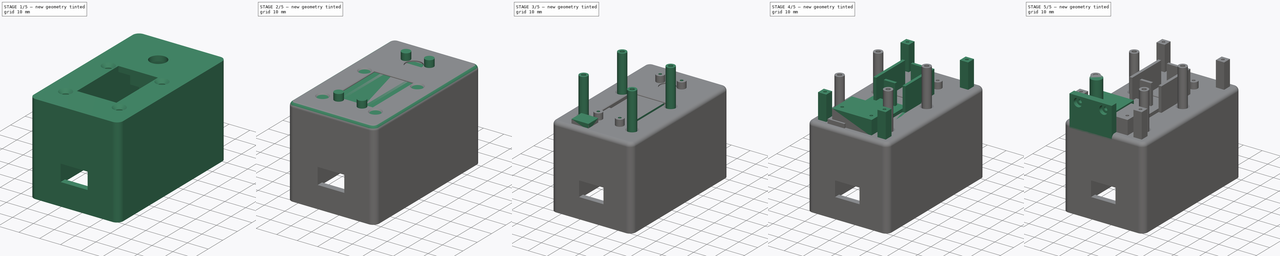
[diagram: build sequence overview — one tinted view per stage of 5, left to right]
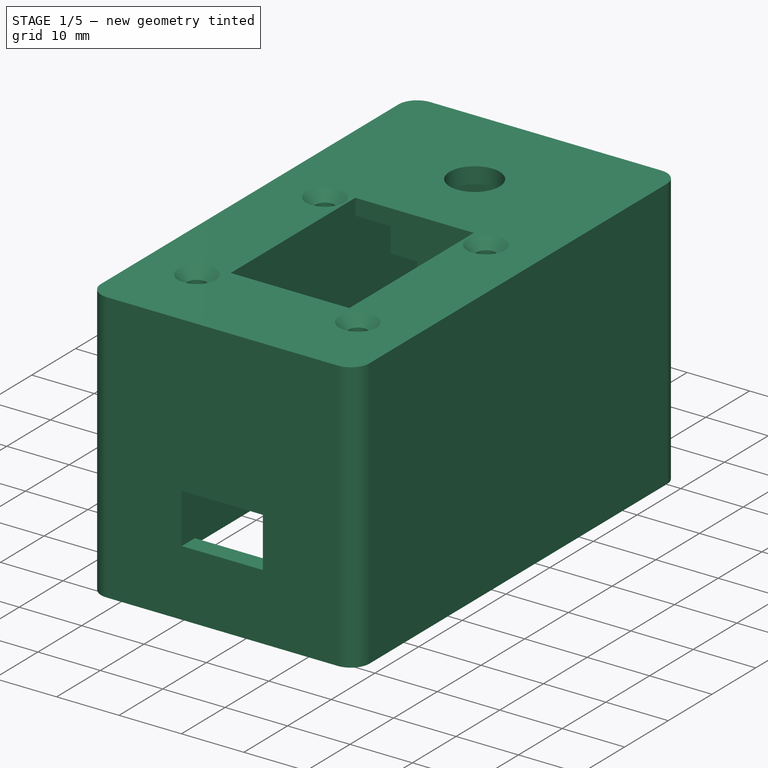
[diagram: stage 1 of 5 — iso view after this stage's code; geometry added in this stage tinted green]
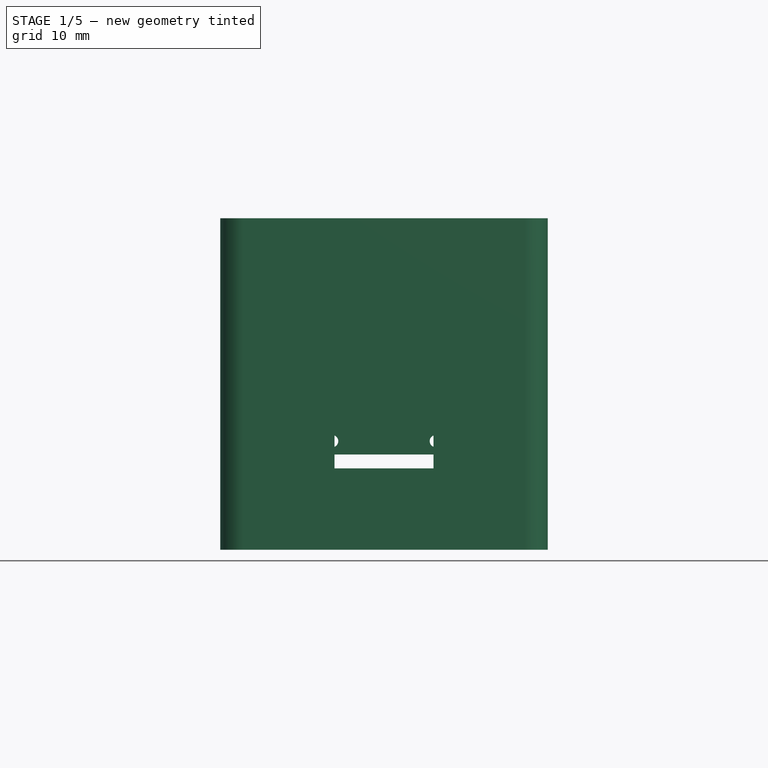
[diagram: stage 1 of 5 — front view after this stage's code; geometry added in this stage tinted green]
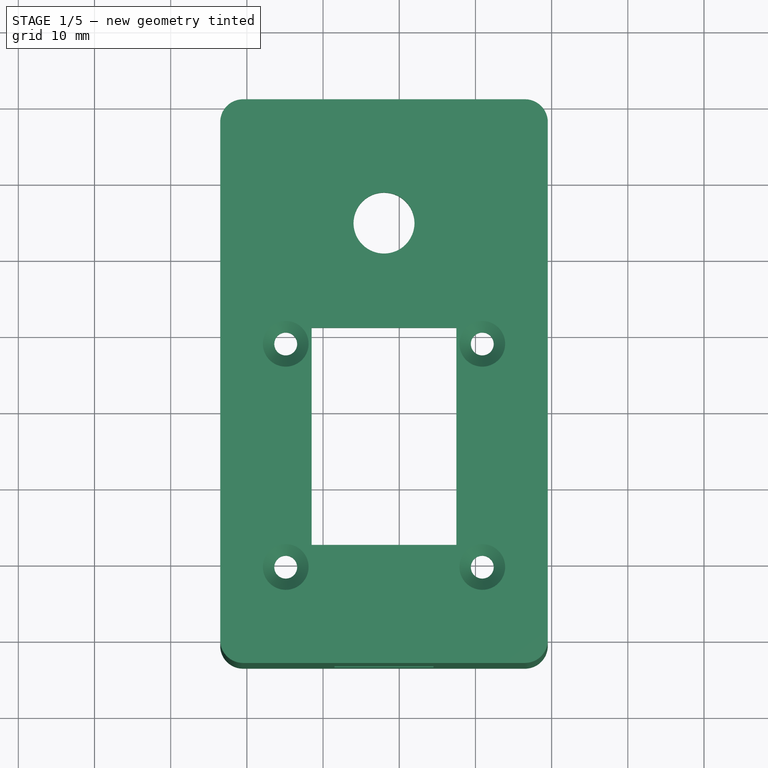
[diagram: stage 1 of 5 — top view after this stage's code; geometry added in this stage tinted green]
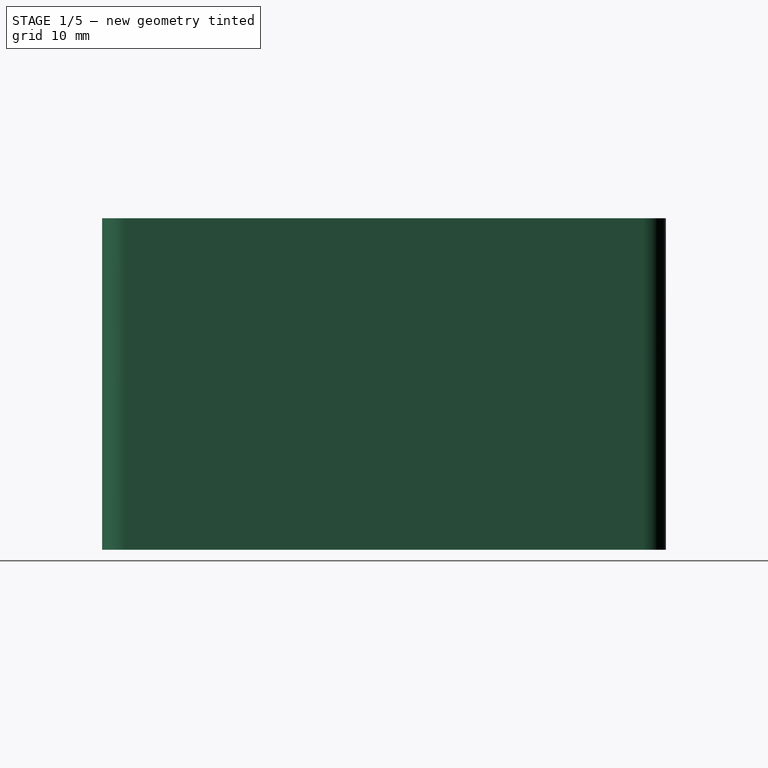
[diagram: stage 1 of 5 — right view after this stage's code; geometry added in this stage tinted green]
FCSTD DOCUMENT  (FreeCAD 0.20R)
Label: enclosure
License: All rights reserved
LicenseURL: http://en.wikipedia.org/wiki/All_rights_reserved
objects: Sketcher::SketchObject×32, PartDesign::Pad×21, Part::Feature×17, PartDesign::Pocket×10, PartDesign::Body×8, PartDesign::Plane×4, PartDesign::Chamfer×3, App::Part×3, Spreadsheet::Sheet×1, PartDesign::Fillet×1
note: 131 computed .brp shape members not serialized (recipe doc carries the construction recipe); baked Part::Feature solids carry a one-line shape summary decoded from their .brp

FEATURE [Sketcher::SketchObject] Sketch003
  FullyConstrained = true
  MapMode = 5
  Support = -> [XY_Plane001]
  expr: Constraints[19] = <<params>>.interior_plate_case_clearance * -1
  expr: Constraints[20] = <<params>>.interior_plate_case_clearance
  expr: Constraints[21] = <<params>>.interior_plate_case_clearance
  expr: Constraints[22] = <<params>>.interior_plate_case_clearance
  expr: Constraints[8] = <<params>>.base_plate_width
  expr: Constraints[9] = <<params>>.base_plate_length
  sketch-geometry (8):
    g0: LineSegment StartX=0 StartY=67 StartZ=0 EndX=36 EndY=67 EndZ=0
    g1: LineSegment StartX=36 StartY=67 StartZ=0 EndX=36 EndY=0 EndZ=0
    g2: LineSegment StartX=36 StartY=0 StartZ=0 EndX=0 EndY=0 EndZ=0
    g3: LineSegment StartX=0 StartY=0 StartZ=0 EndX=0 EndY=67 EndZ=0
    g4: LineSegment StartX=-0.5 StartY=67.5 StartZ=0 EndX=36.5 EndY=67.5 EndZ=0
    g5: LineSegment StartX=36.5 StartY=67.5 StartZ=0 EndX=36.5 EndY=-0.5 EndZ=0
    g6: LineSegment StartX=36.5 StartY=-0.5 StartZ=0 EndX=-0.5 EndY=-0.5 EndZ=0
    g7: LineSegment StartX=-0.5 StartY=-0.5 StartZ=0 EndX=-0.5 EndY=67.5 EndZ=0
  constraints (23):
    c: Coincident(g0,g1)
    c: Coincident(g1,g2)
    c: Coincident(g2,g3)
    c: Coincident(g3,g0)
    c: Horizontal(g0)
    c: Horizontal(g2)
    c: Vertical(g1)
    c: Vertical(g3)
    c: DistanceX(g2,g2) = 36
    c: DistanceY(g1,g1) = 67
    c: Coincident(g-1,g2)
    c: Coincident(g4,g5)
    c: Coincident(g5,g6)
    c: Coincident(g6,g7)
    c: Coincident(g7,g4)
    c: Horizontal(g4)
    c: Horizontal(g6)
    c: Vertical(g5)
    c: Vertical(g7)
    c: DistanceX(g-2,g4) = -0.5
    c: Distance(g4,g0) = 0.5
    c: Distance(g5,g2) = 0.5
    c: Distance(g5,g1) = 0.5
FEATURE [PartDesign::Pad] Pad002  label="lid plate"
  Direction = (0,0,1)
  Length = 2.6
  Length2 = 10
  Profile = -> Sketch003
  ReferenceAxis = -> Sketch003 [N_Axis]
  Type = 0
  expr: Length = <<params>>.lid_thickness
FEATURE [PartDesign::Plane] DatumPlane002
  AttachmentOffset = pos=(0,0,2.6) rot=(0,0,1;0rad)
  Length = 80.1968
  MapMode = 5
  Placement = pos=(0,0,2.6) rot=(0,0,1;0rad)
  ResizeMode = 0
  Support = -> [XY_Plane001]
  Width = 111.197
  expr: .AttachmentOffset.Base.z = <<params>>.lid_thickness
FEATURE [Sketcher::SketchObject] Sketch005
  FullyConstrained = true
  MapMode = 5
  Support = -> [XY_Plane001]
  expr: Constraints[104] = <<params>>.screen_position
  expr: Constraints[115] = <<params>>.base_plate_width
  expr: Constraints[116] = <<params>>.base_plate_length
  expr: Constraints[123] = <<params>>.screen_hole_space
  expr: Constraints[125] = <<params>>.screen_unusable_length
  expr: Constraints[56] = <<params>>.screen_pcb_width
  expr: Constraints[57] = <<params>>.screen_pcb_length
  expr: Constraints[8] = <<params>>.screen_display_length
  expr: Constraints[9] = <<params>>.screen_display_width
  sketch-geometry (51):
    g0: LineSegment StartX=27 StartY=40 StartZ=0 EndX=9 EndY=40 EndZ=0
    g1: LineSegment StartX=9 StartY=40 StartZ=0 EndX=9 EndY=12.5 EndZ=0
    g2: LineSegment StartX=9 StartY=12.5 StartZ=0 EndX=27 EndY=12.5 EndZ=0
    g3: LineSegment StartX=27 StartY=12.5 StartZ=0 EndX=27 EndY=40 EndZ=0
    g4: LineSegment StartX=34 StartY=12.5 StartZ=0 EndX=27 EndY=12.5 EndZ=0
    g5: LineSegment StartX=2 StartY=12.5 StartZ=0 EndX=9 EndY=12.5 EndZ=0
    g6: LineSegment StartX=30.9 StartY=38.4 StartZ=0 EndX=5.1 EndY=38.4 EndZ=0
    g7: LineSegment StartX=5.1 StartY=38.4 StartZ=0 EndX=5.1 EndY=9.1 EndZ=0
    g8: LineSegment StartX=5.1 StartY=9.1 StartZ=0 EndX=30.9 EndY=9.1 EndZ=0
    g9: LineSegment StartX=30.9 StartY=9.1 StartZ=0 EndX=30.9 EndY=38.4 EndZ=0
    g10: LineSegment StartX=34 StartY=38.4 StartZ=0 EndX=30.9 EndY=38.4 EndZ=0
    g11: LineSegment StartX=5.1 StartY=38.4 StartZ=0 EndX=2 EndY=38.4 EndZ=0
    g12: LineSegment StartX=30.9 StartY=41.5 StartZ=0 EndX=30.9 EndY=38.4 EndZ=0
    g13: LineSegment StartX=30.9 StartY=9.1 StartZ=0 EndX=30.9 EndY=6 EndZ=0
    g14: Circle CenterX=30.9 CenterY=38.4 CenterZ=0 NormalX=0 NormalY=0 NormalZ=1 AngleXU=0 Radius=1.5
    g15: Circle CenterX=5.1 CenterY=38.4 CenterZ=0 NormalX=0 NormalY=0 NormalZ=1 AngleXU=0 Radius=1.5
    g16: Circle CenterX=5.1 CenterY=9.1 CenterZ=0 NormalX=0 NormalY=0 NormalZ=1 AngleXU=0 Radius=1.5
    g17: Circle CenterX=30.9 CenterY=9.1 CenterZ=0 NormalX=0 NormalY=0 NormalZ=1 AngleXU=0 Radius=1.5
    g18: LineSegment StartX=2 StartY=41.5 StartZ=0 EndX=34 EndY=41.5 EndZ=0
    g19: LineSegment StartX=34 StartY=41.5 StartZ=0 EndX=34 EndY=6 EndZ=0
    g20: LineSegment StartX=34 StartY=6 StartZ=0 EndX=2 EndY=6 EndZ=0
    g21: LineSegment StartX=2 StartY=6 StartZ=0 EndX=2 EndY=41.5 EndZ=0
    g22: LineSegment StartX=2 StartY=41.5 StartZ=0 EndX=0 EndY=41.5 EndZ=0
    g23: LineSegment StartX=34 StartY=41.5 StartZ=0 EndX=36 EndY=41.5 EndZ=0
    g24: LineSegment StartX=34 StartY=6 StartZ=0 EndX=34 EndY=0 EndZ=0
    g25: LineSegment StartX=10 StartY=61.25 StartZ=0 EndX=26 EndY=61.25 EndZ=0
    g26: LineSegment StartX=26 StartY=61.25 StartZ=0 EndX=26 EndY=47.25 EndZ=0
    g27: LineSegment StartX=26 StartY=47.25 StartZ=0 EndX=10 EndY=47.25 EndZ=0
    g28: LineSegment StartX=10 StartY=47.25 StartZ=0 EndX=10 EndY=61.25 EndZ=0
    g29: Circle CenterX=18 CenterY=54.25 CenterZ=0 NormalX=0 NormalY=0 NormalZ=1 AngleXU=0 Radius=4
    g30: LineSegment StartX=10 StartY=54.25 StartZ=0 EndX=18 EndY=54.25 EndZ=0
    g31: LineSegment StartX=18 StartY=54.25 StartZ=0 EndX=26 EndY=54.25 EndZ=0
    g32: LineSegment StartX=18 StartY=61.25 StartZ=0 EndX=18 EndY=54.25 EndZ=0
    g33: LineSegment StartX=18 StartY=54.25 StartZ=0 EndX=18 EndY=47.25 EndZ=0
    g34: LineSegment StartX=10 StartY=54.25 StartZ=0 EndX=0 EndY=54.25 EndZ=0
    g35: LineSegment StartX=26 StartY=54.25 StartZ=0 EndX=36 EndY=54.25 EndZ=0
    g36: LineSegment StartX=2 StartY=6 StartZ=0 EndX=2 EndY=0 EndZ=0
    g37: LineSegment StartX=18 StartY=67 StartZ=0 EndX=18 EndY=54.25 EndZ=0
    g38: LineSegment StartX=18 StartY=54.25 StartZ=0 EndX=18 EndY=41.5 EndZ=0
    g39: LineSegment StartX=0 StartY=0 StartZ=0 EndX=36 EndY=0 EndZ=0
    g40: LineSegment StartX=36 StartY=0 StartZ=0 EndX=36 EndY=67 EndZ=0
    g41: LineSegment StartX=36 StartY=67 StartZ=0 EndX=0 EndY=67 EndZ=0
    g42: LineSegment StartX=0 StartY=67 StartZ=0 EndX=0 EndY=0 EndZ=0
    g43: GeomPoint X=27 Y=7.5 Z=0
    g44: LineSegment StartX=27 StartY=12.5 StartZ=0 EndX=27 EndY=7.5 EndZ=0
    g45: LineSegment StartX=27 StartY=7.5 StartZ=0 EndX=27 EndY=6 EndZ=0
    g46: LineSegment StartX=27 StartY=40 StartZ=0 EndX=27 EndY=41.5 EndZ=0
    g47: LineSegment StartX=8.5 StartY=40.5 StartZ=0 EndX=27.5 EndY=40.5 EndZ=0
    g48: LineSegment StartX=27.5 StartY=40.5 StartZ=0 EndX=27.5 EndY=12 EndZ=0
    g49: LineSegment StartX=27.5 StartY=12 StartZ=0 EndX=8.5 EndY=12 EndZ=0
    g50: LineSegment StartX=8.5 StartY=12 StartZ=0 EndX=8.5 EndY=40.5 EndZ=0
  constraints (148):
    c: Coincident(g0,g1)
    c: Coincident(g1,g2)
    c: Coincident(g2,g3)
    c: Coincident(g3,g0)
    c: Horizontal(g0)
    c: Horizontal(g2)
    c: Vertical(g1)
    c: Vertical(g3)
    c: DistanceY(g1,g1) = 27.5
    c: DistanceX(g0,g0) = 18
    c: Coincident(g2,g4)
    c: Horizontal(g4)
    c: Horizontal(g5)
    c: Coincident(g1,g5)
    c: Equal(g5,g4)
    c: Coincident(g6,g7)
    c: Coincident(g7,g8)
    c: Coincident(g8,g9)
    c: Coincident(g9,g6)
    c: Horizontal(g6)
    c: Horizontal(g8)
    c: Vertical(g7)
    c: Vertical(g9)
    c: Horizontal(g10)
    c: Horizontal(g11)
    c: Coincident(g6,g11)
    c: Equal(g11,g10)
    c: Coincident(g6,g10)
    c: Vertical(g13)
    c: Equal(g13,g12)
    c: Vertical(g12)
    c: Coincident(g6,g12)
    c: Coincident(g8,g13)
    c: Equal(g17,g16)
    c: Equal(g16,g15)
    c: Equal(g15,g14)
    c: Coincident(g6,g14)
    c: Coincident(g6,g15)
    c: Coincident(g7,g16)
    c: Coincident(g8,g17)
    c: Diameter(g14) = 3
    c: Coincident(g18,g19)
    c: Coincident(g19,g20)
    c: Coincident(g20,g21)
    c: Coincident(g21,g18)
    c: Horizontal(g18)
    c: Horizontal(g20)
    c: Vertical(g19)
    c: Vertical(g21)
    c: Coincident(g22,g18)
    c: Horizontal(g22)
    c: Coincident(g23,g18)
    c: Horizontal(g23)
    c: Coincident(g24,g19)
    c: PointOnObject(g24,g-1)
    c: Vertical(g24)
    c: DistanceX(g18,g18) = 32
    c: DistanceY(g21,g21) = 35.5
    c: PointOnObject(g11,g21)
    c: PointOnObject(g10,g19)
    c: PointOnObject(g12,g18)
    c: PointOnObject(g13,g20)
    c: PointOnObject(g5,g21)
    c: Coincident(g25,g26)
    c: Coincident(g26,g27)
    c: Coincident(g27,g28)
    c: Coincident(g28,g25)
    c: Horizontal(g25)
    c: Horizontal(g27)
    c: Vertical(g26)
    c: Vertical(g28)
    c: DistanceX(g25,g25) = 16
    c: DistanceY(g26,g26) = 14
    c: PointOnObject(g30,g28)
    c: Coincident(g30,g29)
    c: Horizontal(g30)
    c: Coincident(g30,g31)
    c: PointOnObject(g31,g26)
    c: Horizontal(g31)
    c: PointOnObject(g32,g25)
    c: Coincident(g32,g29)
    c: Coincident(g32,g33)
    c: PointOnObject(g33,g27)
    c: Vertical(g33)
    c: Vertical(g32)
    c: Equal(g32,g33)
    c: Equal(g31,g30)
    c: Diameter(g29) = 8
    c: Coincident(g34,g30)
    c: Horizontal(g34)
    c: Horizontal(g35)
    c: Equal(g35,g34)
    c: Coincident(g35,g31)
    c: PointOnObject(g4,g19)
    c: Equal(g22,g23)
    c: Coincident(g36,g20)
    c: PointOnObject(g36,g-1)
    c: Vertical(g36)
    c: Coincident(g37,g29)
    c: Vertical(g37)
    c: Coincident(g37,g38)
    c: Vertical(g38)
    c: Equal(g38,g37)
    c: PointOnObject(g38,g18)
    c: DistanceY(g36,g36) = 6
    c: DistanceY(g29,g37) = 12.75
    c: Coincident(g39,g40)
    c: Coincident(g40,g41)
    c: Coincident(g41,g42)
    c: Coincident(g42,g39)
    c: Horizontal(g39)
    c: Horizontal(g41)
    c: Vertical(g40)
    c: Vertical(g42)
    c: Coincident(g39,g-1)
    c: DistanceX(g41,g41) = 36
    c: DistanceY(g40,g40) = 67
    c: PointOnObject(g37,g41)
    c: PointOnObject(g34,g42)
    c: PointOnObject(g35,g40)
    c: PointOnObject(g23,g40)
    c: PointOnObject(g22,g42)
    c: Distance(g29,g-1) = 54.25
    c: DistanceY(g13,g13) = 3.1
    c: Equal(g10,g12)
    c: DistanceY(g43,g2) = 5
    c: Coincident(g2,g44)
    c: Coincident(g44,g43)
    c: Vertical(g44)
    c: Coincident(g44,g45)
    c: PointOnObject(g45,g20)
    c: Vertical(g45)
    c: Coincident(g46,g0)
    c: PointOnObject(g46,g18)
    c: Vertical(g46)
    c: Equal(g46,g45)
    c: Coincident(g47,g48)
    c: Coincident(g48,g49)
    c: Coincident(g49,g50)
    c: Coincident(g50,g47)
    c: Horizontal(g47)
    c: Horizontal(g49)
    c: Vertical(g48)
    c: Vertical(g50)
    c: Distance(g2,g48) = 0.5
    c: Distance(g2,g49) = 0.5
    c: Distance(g0,g47) = 0.5
    c: Distance(g0,g50) = 0.5
FEATURE [PartDesign::Pocket] Pocket001  label="ui cutout"
  BaseFeature = -> Pad002
  Direction = (0,0,-1)
  Length = 5
  Length2 = 5
  Profile = -> Sketch005
  ReferenceAxis = -> Sketch005 [N_Axis]
  Reversed = true
  Type = 1
FEATURE [Sketcher::SketchObject] Sketch014
  FullyConstrained = true
  MapMode = 5
  Support = -> [XY_Plane001]
  expr: Constraints[21] = <<params>>.interior_plate_case_clearance
  expr: Constraints[22] = <<params>>.interior_plate_case_clearance
  expr: Constraints[23] = <<params>>.interior_plate_case_clearance
  expr: Constraints[37] = <<params>>.interior_plate_case_clearance * -1
  expr: Constraints[38] = <<params>>.case_wall_thickness
  expr: Constraints[8] = <<params>>.base_plate_width
  expr: Constraints[9] = <<params>>.base_plate_length
  sketch-geometry (16):
    g0: LineSegment StartX=0 StartY=67 StartZ=0 EndX=36 EndY=67 EndZ=0
    g1: LineSegment StartX=36 StartY=67 StartZ=0 EndX=36 EndY=0 EndZ=0
    g2: LineSegment StartX=36 StartY=0 StartZ=0 EndX=0 EndY=0 EndZ=0
    g3: LineSegment StartX=0 StartY=0 StartZ=0 EndX=0 EndY=67 EndZ=0
    g4: LineSegment StartX=-0.5 StartY=70.5 StartZ=0 EndX=36.5 EndY=70.5 EndZ=0
    g5: LineSegment StartX=39.5 StartY=67.5 StartZ=0 EndX=39.5 EndY=-0.5 EndZ=0
    g6: LineSegment StartX=36.5 StartY=-3.5 StartZ=0 EndX=-0.5 EndY=-3.5 EndZ=0
    g7: LineSegment StartX=-3.5 StartY=-0.5 StartZ=0 EndX=-3.5 EndY=67.5 EndZ=0
    g8: LineSegment StartX=-0.5 StartY=67.5 StartZ=0 EndX=36.5 EndY=67.5 EndZ=0
    g9: LineSegment StartX=36.5 StartY=67.5 StartZ=0 EndX=36.5 EndY=-0.5 EndZ=0
    g10: LineSegment StartX=36.5 StartY=-0.5 StartZ=0 EndX=-0.5 EndY=-0.5 EndZ=0
    g11: LineSegment StartX=-0.5 StartY=-0.5 StartZ=0 EndX=-0.5 EndY=67.5 EndZ=0
    g12: ArcOfCircle CenterX=-0.5 CenterY=67.5 CenterZ=0 NormalX=0 NormalY=0 NormalZ=1 AngleXU=0 Radius=3 StartAngle=1.5708 EndAngle=3.14159
    g13: ArcOfCircle CenterX=36.5 CenterY=67.5 CenterZ=0 NormalX=0 NormalY=0 NormalZ=1 AngleXU=0 Radius=3 StartAngle=-1.8e-15 EndAngle=1.5708
    g14: ArcOfCircle CenterX=-0.5 CenterY=-0.5 CenterZ=0 NormalX=0 NormalY=0 NormalZ=1 AngleXU=0 Radius=3 StartAngle=3.14159 EndAngle=4.71239
    g15: ArcOfCircle CenterX=36.5 CenterY=-0.5 CenterZ=0 NormalX=0 NormalY=0 NormalZ=1 AngleXU=0 Radius=3 StartAngle=4.71239 EndAngle=6.28319
  constraints (39):
    c: Coincident(g0,g1)
    c: Coincident(g1,g2)
    c: Coincident(g2,g3)
    c: Coincident(g3,g0)
    c: Horizontal(g0)
    c: Horizontal(g2)
    c: Vertical(g1)
    c: Vertical(g3)
    c: DistanceX(g2,g2) = 36
    c: DistanceY(g3,g3) = 67
    c: Horizontal(g4)
    c: Horizontal(g6)
    c: Vertical(g7)
    c: Vertical(g5)
    c: Coincident(g-1,g2)
    c: Coincident(g8,g9)
    c: Coincident(g9,g10)
    c: Coincident(g10,g11)
    c: Horizontal(g8)
    c: Vertical(g9)
    c: Vertical(g11)
    c: Distance(g8,g0) = 0.5
    c: Distance(g9,g1) = 0.5
    c: Distance(g9,g2) = 0.5
    c: Coincident(g12,g8)
    c: Tangent(g12,g4) = 1.5708
    c: Tangent(g12,g7) = 1.5708
    c: Coincident(g13,g8)
    c: Coincident(g14,g10)
    c: Coincident(g15,g9)
    c: Tangent(g15,g5) = 1.5708
    c: Tangent(g15,g6) = 1.5708
    c: Tangent(g14,g6) = 1.5708
    c: Tangent(g14,g7) = 1.5708
    c: Tangent(g13,g4) = 1.5708
    c: Tangent(g13,g5) = 1.5708
    c: Coincident(g11,g8)
    c: DistanceX(g-2,g8) = -0.5
    c: Radius(g12) = 3
FEATURE [PartDesign::Pad] Pad009  label="case wall"
  BaseFeature = -> Pocket001
  Direction = (0,0,1)
  Length = 2.6
  Length2 = 40.9
  Profile = -> Sketch014
  ReferenceAxis = -> Sketch014 [N_Axis]
  Type = 4
  expr: Length = <<params>>.lid_thickness
  expr: Length2 = <<params>>.case_height
FEATURE [Sketcher::SketchObject] Sketch019
  FullyConstrained = true
  MapMode = 5
  Placement = pos=(0,0,0) rot=(1,0,0;1.5708rad)
  Support = -> [XZ_Plane001]
  expr: Constraints[17] = <<params>>.usb_c_connector_width
  expr: Constraints[18] = <<params>>.usb_c_connector_height
  expr: Constraints[27] = <<params>>.usb_c_window_width
  expr: Constraints[28] = <<params>>.usb_c_window_height
  expr: Constraints[44] = <<params>>.case_height - <<params>>.base_plate_recess
  expr: Constraints[52] = <<params>>.base_plate_height + <<params>>.husb238_standoff_height + <<params>>.husb238_board_thickness
  expr: Constraints[8] = <<params>>.base_plate_width
  sketch-geometry (18):
    g0: LineSegment StartX=0 StartY=0 StartZ=0 EndX=36 EndY=0 EndZ=0
    g1: LineSegment StartX=36 StartY=0 StartZ=0 EndX=36 EndY=-39.4 EndZ=0
    g2: LineSegment StartX=36 StartY=-39.4 StartZ=0 EndX=0 EndY=-39.4 EndZ=0
    g3: LineSegment StartX=0 StartY=-39.4 StartZ=0 EndX=0 EndY=0 EndZ=0
    g4: LineSegment StartX=13.5 StartY=-24.65 StartZ=0 EndX=22.5 EndY=-24.65 EndZ=0
    g5: LineSegment StartX=22.5 StartY=-24.65 StartZ=0 EndX=22.5 EndY=-27.8 EndZ=0
    g6: LineSegment StartX=22.5 StartY=-27.8 StartZ=0 EndX=13.5 EndY=-27.8 EndZ=0
    g7: LineSegment StartX=13.5 StartY=-27.8 StartZ=0 EndX=13.5 EndY=-24.65 EndZ=0
    g8: LineSegment StartX=11.5 StartY=-22.225 StartZ=0 EndX=24.5 EndY=-22.225 EndZ=0
    g9: LineSegment StartX=24.5 StartY=-22.225 StartZ=0 EndX=24.5 EndY=-30.225 EndZ=0
    g10: LineSegment StartX=24.5 StartY=-30.225 StartZ=0 EndX=11.5 EndY=-30.225 EndZ=0
    g11: LineSegment StartX=11.5 StartY=-30.225 StartZ=0 EndX=11.5 EndY=-22.225 EndZ=0
    g12: LineSegment StartX=13.5 StartY=-24.65 StartZ=0 EndX=11.5 EndY=-24.65 EndZ=0
    g13: LineSegment StartX=22.5 StartY=-24.65 StartZ=0 EndX=24.5 EndY=-24.65 EndZ=0
    g14: LineSegment StartX=13.5 StartY=-27.8 StartZ=0 EndX=13.5 EndY=-30.225 EndZ=0
    g15: LineSegment StartX=13.5 StartY=-24.65 StartZ=0 EndX=13.5 EndY=-22.225 EndZ=0
    g16: LineSegment StartX=0 StartY=-22.225 StartZ=0 EndX=11.5 EndY=-22.225 EndZ=0
    g17: LineSegment StartX=24.5 StartY=-22.225 StartZ=0 EndX=36 EndY=-22.225 EndZ=0
  constraints (53):
    c: Coincident(g0,g1)
    c: Coincident(g1,g2)
    c: Coincident(g2,g3)
    c: Coincident(g3,g0)
    c: Horizontal(g0)
    c: Horizontal(g2)
    c: Vertical(g1)
    c: Vertical(g3)
    c: DistanceX(g2,g2) = 36
    c: Coincident(g4,g5)
    c: Coincident(g5,g6)
    c: Coincident(g6,g7)
    c: Coincident(g7,g4)
    c: Horizontal(g4)
    c: Horizontal(g6)
    c: Vertical(g5)
    c: Vertical(g7)
    c: DistanceX(g4,g4) = 9
    c: DistanceY(g5,g5) = 3.15
    c: Coincident(g8,g9)
    c: Coincident(g9,g10)
    c: Coincident(g10,g11)
    c: Coincident(g11,g8)
    c: Horizontal(g8)
    c: Horizontal(g10)
    c: Vertical(g9)
    c: Vertical(g11)
    c: DistanceX(g8,g8) = 13
    c: DistanceY(g11,g11) = 8
    c: PointOnObject(g12,g11)
    c: Horizontal(g12)
    c: PointOnObject(g13,g9)
    c: Horizontal(g13)
    c: Coincident(g12,g4)
    c: Coincident(g13,g4)
    c: Equal(g13,g12)
    c: Coincident(g14,g6)
    c: PointOnObject(g14,g10)
    c: Vertical(g14)
    c: Coincident(g15,g4)
    c: PointOnObject(g15,g8)
    c: Vertical(g15)
    c: Equal(g15,g14)
    c: Coincident(g0,g-1)
    c: DistanceY(g3,g3) = 39.4
    c: PointOnObject(g16,g3)
    c: Coincident(g16,g8)
    c: Coincident(g17,g8)
    c: PointOnObject(g17,g1)
    c: Horizontal(g17)
    c: Equal(g17,g16)
    c: Horizontal(g16)
    c: Distance(g5,g2) = 11.6
FEATURE [PartDesign::Pocket] Pocket005  label="usb-c window"
  BaseFeature = -> Pad009
  Direction = (0,1,2e-16)
  Length = 3.5
  Length2 = 5
  Profile = -> Sketch019
  ReferenceAxis = -> Sketch019 [N_Axis]
  Reversed = true
  Type = 1
  expr: Length = <<params>>.case_wall_thickness + <<params>>.interior_plate_case_clearance
FEATURE [PartDesign::Chamfer] Chamfer001  label="Chamfer display screw holes"
  Angle = 45
  Base = -> Pocket005 [Edge27,Edge39,Edge41,Edge29]
  BaseFeature = -> Pocket005
  ChamferType = 0
  FlipDirection = false
  Size = 1.5
  Size2 = 1
  SupportTransform = false
  UseAllEdges = false
FEATURE [PartDesign::Plane] DatumPlane005
  AttachmentOffset = pos=(0,0,-67) rot=(0,0,1;0rad)
  Length = 77.5392
  MapMode = 2
  Placement = pos=(0,67,1.49e-14) rot=(1,0,0;1.5708rad)
  ResizeMode = 0
  Support = -> [XZ_Plane001]
  Width = 78.9393
  expr: .AttachmentOffset.Base.z = <<params>>.base_plate_length * -1
FEATURE [Sketcher::SketchObject] Sketch020
  FullyConstrained = true
  MapMode = 5
  Placement = pos=(0,67,1.49e-14) rot=(1,0,0;1.5708rad)
  Support = -> [DatumPlane005]
  expr: Constraints[38] = <<params>>.m2_tapped_hole_diameter
  expr: Constraints[39] = <<params>>.screw_terminal_hole_spacing
  expr: Constraints[8] = <<params>>.case_height
  expr: Constraints[9] = <<params>>.base_plate_width
  sketch-geometry (15):
    g0: LineSegment StartX=36 StartY=0 StartZ=0 EndX=0 EndY=0 EndZ=0
    g1: LineSegment StartX=0 StartY=0 StartZ=0 EndX=0 EndY=-40.9 EndZ=0
    g2: LineSegment StartX=0 StartY=-40.9 StartZ=0 EndX=36 EndY=-40.9 EndZ=0
    g3: LineSegment StartX=36 StartY=-40.9 StartZ=0 EndX=36 EndY=0 EndZ=0
    g4: LineSegment StartX=27.5 StartY=-28.4 StartZ=0 EndX=8.5 EndY=-28.4 EndZ=0
    g5: LineSegment StartX=8.5 StartY=-28.4 StartZ=0 EndX=8.5 EndY=-40.9 EndZ=0
    g6: LineSegment StartX=8.5 StartY=-40.9 StartZ=0 EndX=27.5 EndY=-40.9 EndZ=0
    g7: LineSegment StartX=27.5 StartY=-40.9 StartZ=0 EndX=27.5 EndY=-28.4 EndZ=0
    g8: LineSegment StartX=36 StartY=-28.4 StartZ=0 EndX=27.5 EndY=-28.4 EndZ=0
    g9: LineSegment StartX=0 StartY=-28.4 StartZ=0 EndX=8.5 EndY=-28.4 EndZ=0
    g10: Circle CenterX=11.2 CenterY=-26.65 CenterZ=0 NormalX=0 NormalY=0 NormalZ=1 AngleXU=0 Radius=0.8
    g11: Circle CenterX=24.8 CenterY=-26.65 CenterZ=0 NormalX=0 NormalY=0 NormalZ=1 AngleXU=0 Radius=0.8
    g12: LineSegment StartX=0 StartY=-26.65 StartZ=0 EndX=11.2 EndY=-26.65 EndZ=0
    g13: LineSegment StartX=11.2 StartY=-26.65 StartZ=0 EndX=24.8 EndY=-26.65 EndZ=0
    g14: LineSegment StartX=24.8 StartY=-26.65 StartZ=0 EndX=36 EndY=-26.65 EndZ=0
  constraints (43):
    c: Coincident(g0,g1)
    c: Coincident(g1,g2)
    c: Coincident(g2,g3)
    c: Coincident(g3,g0)
    c: Horizontal(g0)
    c: Horizontal(g2)
    c: Vertical(g1)
    c: Vertical(g3)
    c: DistanceY(g1,g1) = 40.9
    c: DistanceX(g0,g0) = 36
    c: Coincident(g4,g5)
    c: Coincident(g5,g6)
    c: Coincident(g6,g7)
    c: Coincident(g7,g4)
    c: Horizontal(g4)
    c: Horizontal(g6)
    c: Vertical(g5)
    c: Vertical(g7)
    c: PointOnObject(g8,g3)
    c: PointOnObject(g9,g1)
    c: Horizontal(g9)
    c: Coincident(g4,g8)
    c: Coincident(g4,g9)
    c: Equal(g9,g8)
    c: Horizontal(g8)
    c: DistanceY(g5,g5) = 12.5
    c: DistanceX(g4,g4) = 19
    c: Equal(g11,g10)
    c: PointOnObject(g12,g1)
    c: Coincident(g12,g10)
    c: Coincident(g12,g13)
    c: Coincident(g13,g11)
    c: Horizontal(g13)
    c: Coincident(g13,g14)
    c: PointOnObject(g14,g3)
    c: Horizontal(g14)
    c: Horizontal(g12)
    c: Equal(g12,g14)
    c: Diameter(g10) = 1.6
    c: DistanceX(g13,g13) = 13.6
    c: Coincident(g0,g-1)
    c: Distance(g10,g4) = 1.75
    c: PointOnObject(g5,g2)
FEATURE [PartDesign::Pocket] Pocket006  label="screw terminal window"
  BaseFeature = -> Chamfer001
  Direction = (0,1,2e-16)
  Length = 5
  Length2 = 5
  Profile = -> Sketch020
  ReferenceAxis = -> Sketch020 [N_Axis]
  Type = 1
FEATURE [PartDesign::Body] Body004  label="rotary knob"
  Group = -> [Sketch029,Pad014,Sketch030,Pad015,Sketch031,Pad016]
  Origin = -> Origin004
  Placement = pos=(11,47,39.4) rot=(0,0,1;0rad)
  Tip = -> Pad016
  expr: .Placement.Base.y = <<params>>.knob_position - <<params>>.knob_short_side / 2
  expr: .Placement.Base.z = <<params>>.base_plate_height + <<params>>.base_plate_standoff_height + <<params>>.mid_plate_height + <<params>>.screen_standoff_height + <<params>>.screen_pcb_thickness
FEATURE [Sketcher::SketchObject] Sketch034
  ExternalGeometry = -> [Pocket006]
  FullyConstrained = true
  MapMode = 5
  Support = -> [XY_Plane001]
  expr: Constraints[10] = <<params>>.base_plate_length + <<params>>.interior_plate_case_clearance
  expr: Constraints[23] = <<params>>.knob_short_side
  expr: Constraints[24] = <<params>>.knob_long_side
  expr: Constraints[55] = <<params>>.knob_position
  expr: Constraints[9] = <<params>>.base_plate_width
  sketch-geometry (21):
    g0: LineSegment StartX=36 StartY=0 StartZ=0 EndX=0 EndY=0 EndZ=0
    g1: LineSegment StartX=0 StartY=0 StartZ=0 EndX=0 EndY=67.5 EndZ=0
    g2: LineSegment StartX=0 StartY=67.5 StartZ=0 EndX=36 EndY=67.5 EndZ=0
    g3: LineSegment StartX=36 StartY=67.5 StartZ=0 EndX=36 EndY=0 EndZ=0
    g4: LineSegment StartX=25 StartY=61 StartZ=0 EndX=11 EndY=61 EndZ=0
    g5: LineSegment StartX=11 StartY=61 StartZ=0 EndX=11 EndY=47 EndZ=0
    g6: LineSegment StartX=11 StartY=47 StartZ=0 EndX=25 EndY=47 EndZ=0
    g7: LineSegment StartX=25 StartY=47 StartZ=0 EndX=25 EndY=61 EndZ=0
    g8: LineSegment StartX=25 StartY=61 StartZ=0 EndX=11 EndY=47 EndZ=0
    g9: LineSegment StartX=11 StartY=61 StartZ=0 EndX=25 EndY=47 EndZ=0
    g10: LineSegment StartX=11 StartY=67.5 StartZ=0 EndX=25 EndY=67.5 EndZ=0
    g11: LineSegment StartX=25 StartY=67.5 StartZ=0 EndX=25 EndY=61 EndZ=0
    g12: LineSegment StartX=25 StartY=61 StartZ=0 EndX=11 EndY=61 EndZ=0
    g13: LineSegment StartX=11 StartY=61 StartZ=0 EndX=11 EndY=67.5 EndZ=0
    g14: LineSegment StartX=11 StartY=47 StartZ=0 EndX=25 EndY=47 EndZ=0
    g15: LineSegment StartX=25 StartY=47 StartZ=0 EndX=25 EndY=45 EndZ=0
    g16: LineSegment StartX=25 StartY=45 StartZ=0 EndX=11 EndY=45 EndZ=0
    g17: LineSegment StartX=11 StartY=45 StartZ=0 EndX=11 EndY=47 EndZ=0
    g18: LineSegment StartX=0 StartY=61 StartZ=0 EndX=11 EndY=61 EndZ=0
    g19: LineSegment StartX=25 StartY=61 StartZ=0 EndX=36 EndY=61 EndZ=0
    g20: GeomPoint X=18 Y=54 Z=0
  constraints (56):
    c: Coincident(g0,g1)
    c: Coincident(g1,g2)
    c: Coincident(g2,g3)
    c: Coincident(g3,g0)
    c: Horizontal(g0)
    c: Horizontal(g2)
    c: Vertical(g1)
    c: Vertical(g3)
    c: PointOnObject(g0,g-1)
    c: DistanceX(g2,g2) = 36
    c: DistanceY(g1,g1) = 67.5
    c: Coincident(g4,g5)
    c: Coincident(g5,g6)
    c: Coincident(g6,g7)
    c: Coincident(g7,g4)
    c: Horizontal(g4)
    c: Horizontal(g6)
    c: Vertical(g5)
    c: Vertical(g7)
    c: Coincident(g8,g5)
    c: Coincident(g4,g9)
    c: Coincident(g4,g8)
    c: Coincident(g6,g9)
    c: DistanceY(g7,g7) = 14
    c: DistanceX(g4,g4) = 14
    c: Coincident(g10,g11)
    c: Coincident(g11,g12)
    c: Coincident(g12,g13)
    c: Coincident(g13,g10)
    c: Horizontal(g10)
    c: Vertical(g11)
    c: Vertical(g13)
    c: PointOnObject(g10,g2)
    c: Coincident(g14,g15)
    c: Coincident(g15,g16)
    c: Coincident(g16,g17)
    c: Coincident(g17,g14)
    c: Horizontal(g16)
    c: Vertical(g15)
    c: Vertical(g17)
    c: DistanceY(g17,g17) = 2
    c: Coincident(g4,g12)
    c: Coincident(g4,g11)
    c: Coincident(g5,g14)
    c: Coincident(g6,g14)
    c: PointOnObject(g0,g-2)
    c: PointOnObject(g18,g1)
    c: Coincident(g18,g12)
    c: Horizontal(g18)
    c: Coincident(g19,g11)
    c: PointOnObject(g19,g3)
    c: Horizontal(g19)
    c: Equal(g19,g18)
    c: PointOnObject(g20,g8)
    c: PointOnObject(g20,g9)
    c: DistanceY(g-1,g20) = 54
FEATURE [PartDesign::Pad] Pad019  label="knob cage"
  BaseFeature = -> Pocket006
  Direction = (0,0,1)
  Length = 6.5
  Length2 = 10
  Profile = -> Sketch034
  ReferenceAxis = -> Sketch034 [N_Axis]
  Reversed = true
  Type = 0
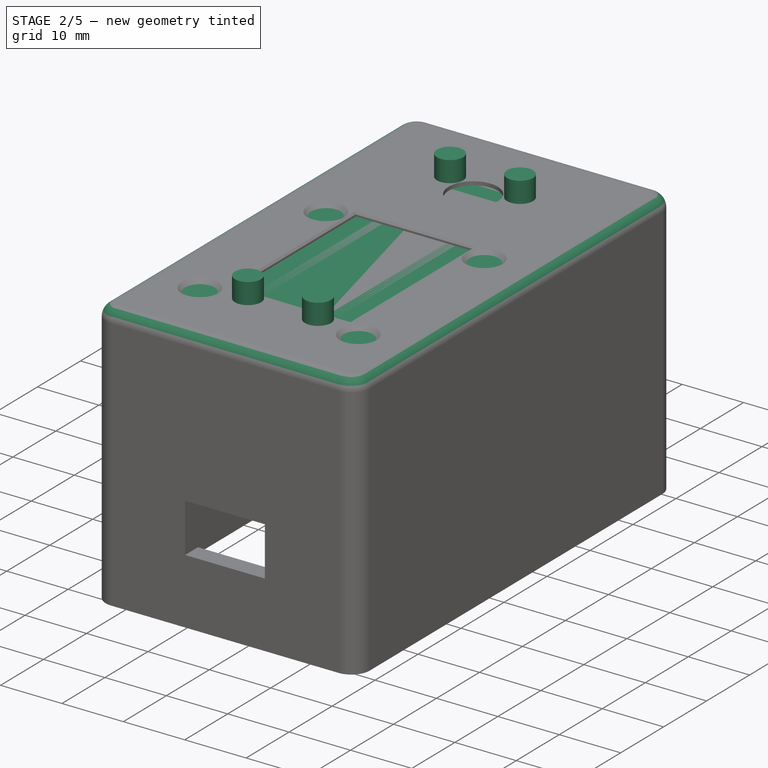
[diagram: stage 2 of 5 — iso view after this stage's code; geometry added in this stage tinted green]
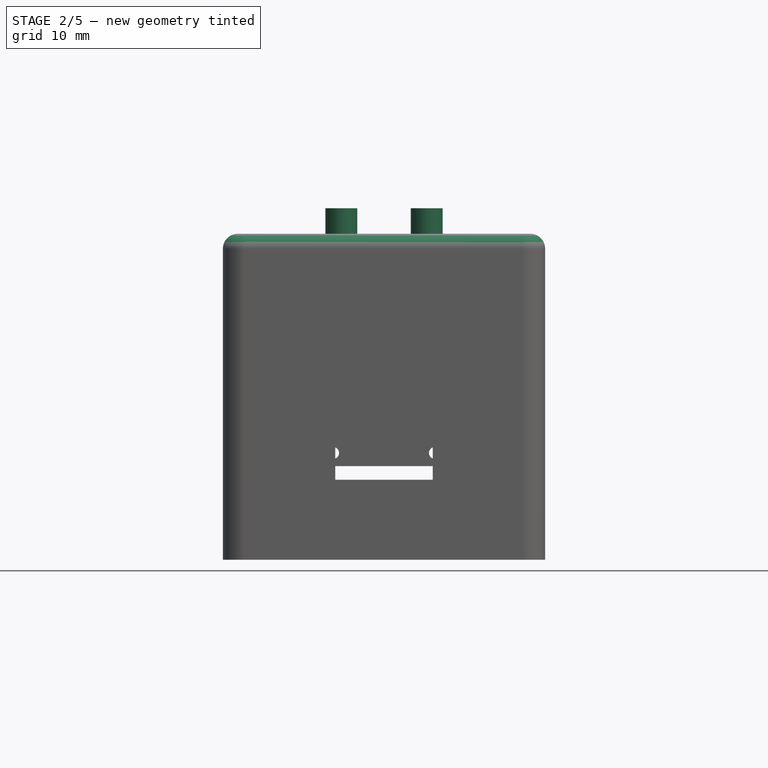
[diagram: stage 2 of 5 — front view after this stage's code; geometry added in this stage tinted green]
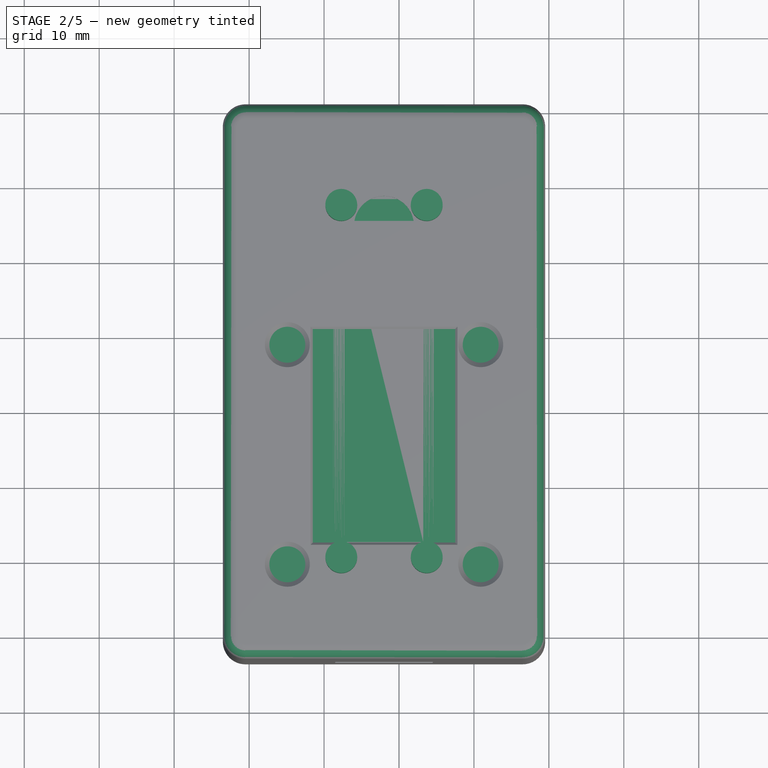
[diagram: stage 2 of 5 — top view after this stage's code; geometry added in this stage tinted green]
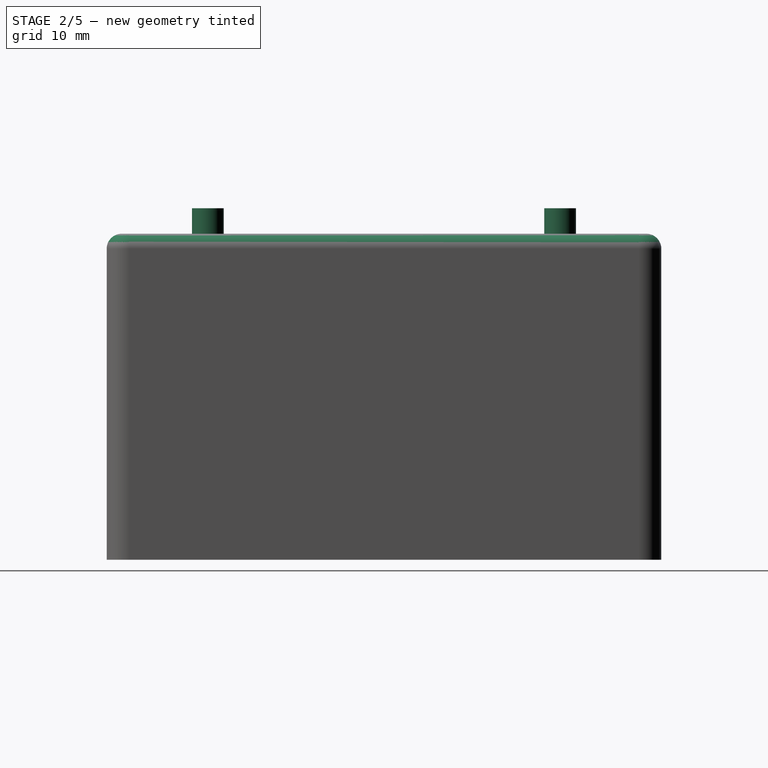
[diagram: stage 2 of 5 — right view after this stage's code; geometry added in this stage tinted green]
FEATURE [Sketcher::SketchObject] Sketch006
  FullyConstrained = true
  MapMode = 5
  Support = -> [XY_Plane002]
  expr: Constraints[8] = <<params>>.base_plate_width
  expr: Constraints[9] = <<params>>.base_plate_length
  sketch-geometry (4):
    g0: LineSegment StartX=36 StartY=0 StartZ=0 EndX=0 EndY=0 EndZ=0
    g1: LineSegment StartX=0 StartY=0 StartZ=0 EndX=0 EndY=67 EndZ=0
    g2: LineSegment StartX=0 StartY=67 StartZ=0 EndX=36 EndY=67 EndZ=0
    g3: LineSegment StartX=36 StartY=67 StartZ=0 EndX=36 EndY=0 EndZ=0
  constraints (11):
    c: Coincident(g0,g1)
    c: Coincident(g1,g2)
    c: Coincident(g2,g3)
    c: Coincident(g3,g0)
    c: Horizontal(g0)
    c: Horizontal(g2)
    c: Vertical(g1)
    c: Vertical(g3)
    c: DistanceX(g0,g0) = 36
    c: DistanceY(g1,g1) = 67
    c: Coincident(g0,g-1)
FEATURE [PartDesign::Pad] Pad003  label="plate"
  Direction = (0,0,1)
  Length = 2
  Length2 = 10
  Profile = -> Sketch006
  ReferenceAxis = -> Sketch006 [N_Axis]
  Type = 0
  expr: Length = <<params>>.mid_plate_height
FEATURE [PartDesign::Plane] DatumPlane003
  AttachmentOffset = pos=(0,0,2) rot=(0,0,1;0rad)
  Length = 75.9827
  MapMode = 2
  Placement = pos=(0,0,2) rot=(0,0,1;0rad)
  ResizeMode = 0
  Support = -> [XY_Plane002]
  Width = 106.983
  expr: .AttachmentOffset.Base.z = <<params>>.mid_plate_height
FEATURE [Sketcher::SketchObject] Sketch007
  ExternalGeometry = -> [Sketch006]
  FullyConstrained = true
  MapMode = 5
  Placement = pos=(0,0,2) rot=(0,0,1;0rad)
  Support = -> [DatumPlane003]
  sketch-geometry (16):
    g0: LineSegment StartX=12.3 StartY=57 StartZ=0 EndX=23.7 EndY=57 EndZ=0
    g1: LineSegment StartX=23.7 StartY=57 StartZ=0 EndX=23.7 EndY=10 EndZ=0
    g2: LineSegment StartX=23.7 StartY=10 StartZ=0 EndX=12.3 EndY=10 EndZ=0
    g3: LineSegment StartX=12.3 StartY=10 StartZ=0 EndX=12.3 EndY=57 EndZ=0
    g4: LineSegment StartX=12.3 StartY=57 StartZ=0 EndX=0 EndY=57 EndZ=0
    g5: LineSegment StartX=23.7 StartY=57 StartZ=0 EndX=36 EndY=57 EndZ=0
    g6: Circle CenterX=12.3 CenterY=57 CenterZ=0 NormalX=0 NormalY=0 NormalZ=1 AngleXU=0 Radius=2.125
    g7: Circle CenterX=23.7 CenterY=57 CenterZ=0 NormalX=0 NormalY=0 NormalZ=1 AngleXU=0 Radius=2.125
    g8: Circle CenterX=23.7 CenterY=10 CenterZ=0 NormalX=0 NormalY=0 NormalZ=1 AngleXU=0 Radius=2.125
    g9: Circle CenterX=12.3 CenterY=10 CenterZ=0 NormalX=0 NormalY=0 NormalZ=1 AngleXU=0 Radius=2.125
    g10: LineSegment StartX=7.5 StartY=59 StartZ=0 EndX=28.5 EndY=59 EndZ=0
    g11: LineSegment StartX=28.5 StartY=59 StartZ=0 EndX=28.5 EndY=8 EndZ=0
    g12: LineSegment StartX=28.5 StartY=8 StartZ=0 EndX=7.5 EndY=8 EndZ=0
    g13: LineSegment StartX=7.5 StartY=8 StartZ=0 EndX=7.5 EndY=59 EndZ=0
    g14: LineSegment StartX=28.5 StartY=59 StartZ=0 EndX=28.5 EndY=67 EndZ=0
    g15: LineSegment StartX=28.5 StartY=8 StartZ=0 EndX=28.5 EndY=0 EndZ=0
  constraints (44):
    c: Coincident(g0,g1)
    c: Coincident(g1,g2)
    c: Coincident(g2,g3)
    c: Coincident(g3,g0)
    c: Horizontal(g0)
    c: Horizontal(g2)
    c: Vertical(g1)
    c: Vertical(g3)
    c: PointOnObject(g4,g-3)
    c: Horizontal(g4)
    c: Coincident(g5,g0)
    c: PointOnObject(g5,g-5)
    c: Horizontal(g5)
    c: Equal(g5,g4)
    c: Coincident(g0,g4)
    c: DistanceY(g3,g3) = 47
    c: DistanceX(g0,g0) = 11.4
    c: Coincident(g6,g0)
    c: Coincident(g7,g0)
    c: Coincident(g8,g1)
    c: Coincident(g2,g9)
    c: Equal(g6,g7)
    c: Equal(g7,g8)
    c: Equal(g8,g9)
    c: Coincident(g10,g11)
    c: Coincident(g11,g12)
    c: Coincident(g12,g13)
    c: Coincident(g13,g10)
    c: Horizontal(g10)
    c: Horizontal(g12)
    c: Vertical(g11)
    c: Vertical(g13)
    c: DistanceX(g10,g10) = 21
    c: DistanceY(g11,g11) = 51
    c: Distance(g7,g10) = 2
    c: Distance(g7,g11) = 4.8
    c: Coincident(g14,g10)
    c: PointOnObject(g14,g-4)
    c: Vertical(g14)
    c: Coincident(g15,g11)
    c: PointOnObject(g15,g-1)
    c: Vertical(g15)
    c: Equal(g14,g15)
    c: Diameter(g6) = 4.25
FEATURE [PartDesign::Pad] Pad004  label="pico standoffs"
  BaseFeature = -> Pad003
  Direction = (0,0,1)
  Length = 4
  Length2 = 10
  Profile = -> Sketch007
  ReferenceAxis = -> Sketch007 [N_Axis]
  Type = 0
  expr: Length = <<params>>.pico_standoff_height
FEATURE [PartDesign::Body] Body006  label="screen"
  Group = -> [Sketch042,Pad025,Sketch043,Pad026,Sketch044,Pad027]
  Origin = -> Origin006
  Placement = pos=(2,6,37.75) rot=(0,0,1;0rad)
  Tip = -> Pad027
  expr: .Placement.Base.y = <<params>>.screen_position
  expr: .Placement.Base.z = <<params>>.base_plate_height + <<params>>.base_plate_standoff_height + <<params>>.mid_plate_height + <<params>>.screen_standoff_height
FEATURE [PartDesign::Fillet] Fillet  label="top fillet"
  Base = -> Pad019 [Edge87]
  BaseFeature = -> Pad019
  Radius = 2
  SupportTransform = false
  UseAllEdges = false
FEATURE [PartDesign::Chamfer] Chamfer  label="screen chamfer"
  Angle = 45
  Base = -> Fillet [Edge32,Edge31,Edge30,Edge33]
  BaseFeature = -> Fillet
  ChamferType = 0
  FlipDirection = false
  Size = 0.3
  Size2 = 1
  SupportTransform = false
  UseAllEdges = false
FEATURE [PartDesign::Body] Body002  label="mid-plate"
  Group = -> [Sketch006,Pad003,DatumPlane003,Sketch007,Pad004,Sketch012,Pocket002,Sketch022,Pocket008,Sketch040,Pad024,Sketch041,Pocket012,Sketch047,Pocket]
  Origin = -> Origin002
  Placement = pos=(0,0,15.75) rot=(0,0,1;0rad)
  Tip = -> Pocket
  expr: .Placement.Base.z = <<params>>.base_plate_height + <<params>>.base_plate_standoff_height
FEATURE [Sketcher::SketchObject] Sketch048
  FullyConstrained = true
  MapMode = 5
  Support = -> [XY_Plane008]
  expr: Constraints[10] = <<params>>.base_plate_width
  expr: Constraints[69] = <<params>>.m2_clearance_hole_diameter
  expr: Constraints[9] = <<params>>.m2_clearance_hole_diameter * 2
  sketch-geometry (27):
    g0: LineSegment StartX=0 StartY=0 StartZ=0 EndX=36 EndY=0 EndZ=0
    g1: LineSegment StartX=36 StartY=0 StartZ=0 EndX=36 EndY=4.4 EndZ=0
    g2: LineSegment StartX=36 StartY=4.4 StartZ=0 EndX=0 EndY=4.4 EndZ=0
    g3: LineSegment StartX=0 StartY=4.4 StartZ=0 EndX=0 EndY=0 EndZ=0
    g4: LineSegment StartX=0 StartY=0 StartZ=0 EndX=4.4 EndY=0 EndZ=0
    g5: LineSegment StartX=4.4 StartY=0 StartZ=0 EndX=4.4 EndY=4.4 EndZ=0
    g6: LineSegment StartX=4.4 StartY=4.4 StartZ=0 EndX=0 EndY=4.4 EndZ=0
    g7: LineSegment StartX=0 StartY=4.4 StartZ=0 EndX=0 EndY=0 EndZ=0
    g8: LineSegment StartX=15.8 StartY=4.4 StartZ=0 EndX=20.2 EndY=4.4 EndZ=0
    g9: LineSegment StartX=20.2 StartY=4.4 StartZ=0 EndX=20.2 EndY=0 EndZ=0
    g10: LineSegment StartX=20.2 StartY=0 StartZ=0 EndX=15.8 EndY=0 EndZ=0
    g11: LineSegment StartX=15.8 StartY=0 StartZ=0 EndX=15.8 EndY=4.4 EndZ=0
    g12: LineSegment StartX=31.6 StartY=0 StartZ=0 EndX=36 EndY=0 EndZ=0
    g13: LineSegment StartX=36 StartY=0 StartZ=0 EndX=36 EndY=4.4 EndZ=0
    g14: LineSegment StartX=36 StartY=4.4 StartZ=0 EndX=31.6 EndY=4.4 EndZ=0
    g15: LineSegment StartX=31.6 StartY=4.4 StartZ=0 EndX=31.6 EndY=0 EndZ=0
    g16: LineSegment StartX=4.4 StartY=0 StartZ=0 EndX=15.8 EndY=0 EndZ=0
    g17: LineSegment StartX=20.2 StartY=0 StartZ=0 EndX=31.6 EndY=0 EndZ=0
    g18: LineSegment StartX=0 StartY=4.4 StartZ=0 EndX=4.4 EndY=0 EndZ=0
    g19: LineSegment StartX=0 StartY=0 StartZ=0 EndX=4.4 EndY=4.4 EndZ=0
    g20: LineSegment StartX=15.8 StartY=4.4 StartZ=0 EndX=20.2 EndY=0 EndZ=0
    g21: LineSegment StartX=15.8 StartY=0 StartZ=0 EndX=20.2 EndY=4.4 EndZ=0
    g22: LineSegment StartX=31.6 StartY=4.4 StartZ=0 EndX=36 EndY=0 EndZ=0
    g23: LineSegment StartX=31.6 StartY=0 StartZ=0 EndX=36 EndY=4.4 EndZ=0
    g24: Circle CenterX=2.2 CenterY=2.2 CenterZ=0 NormalX=0 NormalY=0 NormalZ=1 AngleXU=0 Radius=1.1
    g25: Circle CenterX=18 CenterY=2.2 CenterZ=0 NormalX=0 NormalY=0 NormalZ=1 AngleXU=0 Radius=1.1
    g26: Circle CenterX=33.8 CenterY=2.2 CenterZ=0 NormalX=0 NormalY=0 NormalZ=1 AngleXU=0 Radius=1.1
  constraints (70):
    c: Coincident(g0,g1)
    c: Coincident(g1,g2)
    c: Coincident(g2,g3)
    c: Coincident(g3,g0)
    c: Horizontal(g0)
    c: Horizontal(g2)
    c: Vertical(g1)
    c: Vertical(g3)
    c: Coincident(g0,g-1)
    c: DistanceY(g1,g1) = 4.4
    c: DistanceX(g0,g0) = 36
    c: Coincident(g4,g5)
    c: Coincident(g5,g6)
    c: Coincident(g6,g7)
    c: Coincident(g7,g4)
    c: Horizontal(g4)
    c: Horizontal(g6)
    c: Vertical(g5)
    c: Vertical(g7)
    c: Coincident(g4,g0)
    c: PointOnObject(g5,g2)
    c: Coincident(g8,g9)
    c: Coincident(g9,g10)
    c: Coincident(g10,g11)
    c: Coincident(g11,g8)
    c: Horizontal(g8)
    c: Horizontal(g10)
    c: Vertical(g9)
    c: Vertical(g11)
    c: PointOnObject(g8,g2)
    c: PointOnObject(g9,g0)
    c: Coincident(g12,g13)
    c: Coincident(g13,g14)
    c: Coincident(g14,g15)
    c: Coincident(g15,g12)
    c: Horizontal(g12)
    c: Horizontal(g14)
    c: Vertical(g13)
    c: Vertical(g15)
    c: PointOnObject(g12,g0)
    c: Coincident(g13,g1)
    c: Equal(g4,g5)
    c: Equal(g8,g9)
    c: Equal(g14,g15)
    c: Coincident(g16,g4)
    c: Coincident(g17,g12)
    c: Equal(g17,g16)
    c: Coincident(g16,g10)
    c: Coincident(g17,g9)
    c: Coincident(g18,g2)
    c: Coincident(g18,g4)
    c: Coincident(g19,g0)
    c: Coincident(g19,g5)
    c: Coincident(g20,g8)
    c: Coincident(g20,g9)
    c: Coincident(g21,g10)
    c: Coincident(g21,g8)
    c: Coincident(g22,g14)
    c: Coincident(g22,g0)
    c: Coincident(g23,g12)
    c: Coincident(g23,g1)
    c: PointOnObject(g24,g18)
    c: PointOnObject(g25,g20)
    c: PointOnObject(g26,g22)
    c: PointOnObject(g26,g23)
    c: PointOnObject(g25,g21)
    c: PointOnObject(g24,g19)
    c: Equal(g24,g25)
    c: Equal(g25,g26)
    c: Diameter(g25) = 2.2
FEATURE [PartDesign::Pad] Pad030
  Direction = (0,0,1)
  Length = 2
  Length2 = 10
  Profile = -> Sketch048
  ReferenceAxis = -> Sketch048 [N_Axis]
  Type = 0
  expr: Length = <<params>>.mid_plate_height
FEATURE [PartDesign::Body] Body008  label="mid-plate endcap"
  Group = -> [Sketch048,Pad030]
  Origin = -> Origin008
  Placement = pos=(0,0,17.75) rot=(0,0,1;0rad)
  Tip = -> Pad030
  expr: .Placement.Base.z = <<params>>.base_plate_height + <<params>>.base_plate_standoff_height + <<params>>.mid_plate_height
FEATURE [Part::Feature] Part__Feature  label="PICO_REF_BOARD.STEP"
  shape: bbox 21 x 1 x 51 mm, 450 faces (baked)
FEATURE [Part::Feature] Part__Feature001  label="PICO_REF_USB.STEP"
  Placement = pos=(10.5,1.76,-49.2) rot=(0,1,0;3.14159rad)
  shape: bbox 7.58 x 2.52 x 5 mm, 27 faces (baked)
FEATURE [Part::Feature] Part__Feature002  label="PICO_REF_USB.STEP001"
  Placement = pos=(10.5,1.76,-49.2) rot=(0,1,0;3.14159rad)
  shape: bbox 6.4 x 0.55 x 0.6 mm, 10 faces (baked)
FEATURE [Part::Feature] Part__Feature003  label="PICO_REF_USB.STEP002"
  Placement = pos=(10.5,1.76,-49.2) rot=(0,1,0;3.14159rad)
  shape: bbox 5.2 x 0.55 x 0.6 mm, 10 faces (baked)
FEATURE [Part::Feature] Part__Feature004  label="PICO_REF_USB.STEP003"
  Placement = pos=(10.5,1.76,-49.2) rot=(0,1,0;3.14159rad)
  shape: bbox 0.55 x 0.92 x 0.6 mm, 10 faces (baked)
FEATURE [Part::Feature] Part__Feature005  label="PICO_REF_USB.STEP004"
  Placement = pos=(10.5,1.76,-49.2) rot=(0,1,0;3.14159rad)
  shape: bbox 0.55 x 0.92 x 0.6 mm, 10 faces (baked)
FEATURE [App::Part] PICO_REF_USB_STEP  label="PICO_REF_USB.STEP005"
  Group = -> [Part__Feature001,Part__Feature002,Part__Feature003,Part__Feature004,Part__Feature005]
  Origin = -> Origin009
FEATURE [Part::Feature] Part__Feature006  label="PICO_REF_SWITCH.STEP"
  Placement = pos=(7,0.5,-39) rot=(0,1,0;1.5708rad)
  shape: bbox 3.2 x 2.5 x 4.25 mm, 15 faces (baked)
FEATURE [Part::Feature] Part__Feature007  label="PICO_REF_MICROCONTROLLER.STEP"
  Placement = pos=(10.5,0.95,-25) rot=(0,0,1;0rad)
  shape: bbox 7 x 0.9 x 7 mm, 6 faces (baked)
FEATURE [Part::Feature] Part__Feature008  label="PICO_REF_LED.STEP"
  Placement = pos=(4.8,0.5,-46.2) rot=(0,0,1;0rad)
  shape: bbox 1.6 x 0.6 x 0.8 mm, 10 faces (baked)
FEATURE [Part::Feature] Part__Feature009  label="PICO_REF_ONSEMI.STEP"
  Placement = pos=(16.5,0.5,-44.4) rot=(0,1,0;1.5708rad)
  shape: bbox 1.65 x 0.95 x 3.6 mm, 14 faces (baked)
FEATURE [Part::Feature] Part__Feature010  label="PICO_BOURNS.STEP"
  Placement = pos=(16.5,0.5,-40.1) rot=(0,-1,0;1.5708rad)
  shape: bbox 2 x 1.2 x 2.5 mm, 6 faces (baked)
FEATURE [Part::Feature] Part__Feature011  label="PICO_MURATA.STEP"
  Placement = pos=(13.4,1.125,-42.6) rot=(0,0,1;0rad)
  shape: bbox 2 x 1.25 x 1.25 mm, 6 faces (baked)
FEATURE [Part::Feature] Part__Feature012  label="PICO_MURATA.STEP001"
  Placement = pos=(13.4,1.125,-37.6) rot=(0,0,1;0rad)
  shape: bbox 2 x 1.25 x 1.25 mm, 6 faces (baked)
FEATURE [Part::Feature] Part__Feature013  label="PICO_RICHTEK.STEP"
  Placement = pos=(13.4,0.5,-40.1) rot=(0,0,1;0rad)
  shape: bbox 2.5 x 0.75 x 2.5 mm, 6 faces (baked)
FEATURE [Part::Feature] Part__Feature014  label="PICO_DIODES.STEP"
  Placement = pos=(16.9,0.5,-32.7) rot=(0,0,1;0rad)
  shape: bbox 1.6 x 0.8 x 0.8 mm, 6 faces (baked)
FEATURE [Part::Feature] Part__Feature015  label="PICO_AEL.STEP"
  Placement = pos=(8.2,0.5,-16.45) rot=(0,0,1;0rad)
  shape: bbox 3.2 x 0.6 x 2.5 mm, 6 faces (baked)
FEATURE [Part::Feature] Part__Feature016  label="PICO_WINBOND.STEP"
  Placement = pos=(6.7,0.8,-31.9) rot=(0,0,1;0rad)
  shape: bbox 2 x 0.6 x 3 mm, 6 faces (baked)
FEATURE [App::Part] PICO_assm_140121_STEP  label="PICO_assm_140121.STEP"
  Group = -> [Part__Feature,PICO_REF_USB_STEP,Part__Feature006,Part__Feature007,Part__Feature008,Part__Feature009,Part__Feature010,Part__Feature011,Part__Feature012,Part__Feature013,Part__Feature014,Part__Feature015,Part__Feature016]
  Origin = -> Origin010
FEATURE [App::Part] PICO
  Group = -> [PICO_assm_140121_STEP]
  Origin = -> Origin011
  Placement = pos=(7.5,8,22.3) rot=(1,0,0;1.5708rad)
FEATURE [PartDesign::Chamfer] Chamfer002  label="rotary shaft internal bevel"
  Angle = 45
  Base = -> Chamfer [Edge32]
  BaseFeature = -> Chamfer
  ChamferType = 0
  FlipDirection = false
  Size = 2
  Size2 = 1
  SupportTransform = false
  UseAllEdges = false
FEATURE [Sketcher::SketchObject] Sketch049
  FullyConstrained = true
  MapMode = 5
  Support = -> [XY_Plane001]
  expr: Constraints[104] = <<params>>.screen_position
  expr: Constraints[115] = <<params>>.base_plate_width
  expr: Constraints[116] = <<params>>.base_plate_length
  expr: Constraints[123] = <<params>>.screen_hole_space
  expr: Constraints[125] = <<params>>.screen_unusable_length
  expr: Constraints[56] = <<params>>.screen_pcb_width
  expr: Constraints[57] = <<params>>.screen_pcb_length
  expr: Constraints[8] = <<params>>.screen_display_length
  expr: Constraints[9] = <<params>>.screen_display_width
  sketch-geometry (51):
    g0: LineSegment StartX=27 StartY=40 StartZ=0 EndX=9 EndY=40 EndZ=0
    g1: LineSegment StartX=9 StartY=40 StartZ=0 EndX=9 EndY=12.5 EndZ=0
    g2: LineSegment StartX=9 StartY=12.5 StartZ=0 EndX=27 EndY=12.5 EndZ=0
    g3: LineSegment StartX=27 StartY=12.5 StartZ=0 EndX=27 EndY=40 EndZ=0
    g4: LineSegment StartX=34 StartY=12.5 StartZ=0 EndX=27 EndY=12.5 EndZ=0
    g5: LineSegment StartX=2 StartY=12.5 StartZ=0 EndX=9 EndY=12.5 EndZ=0
    g6: LineSegment StartX=30.9 StartY=38.4 StartZ=0 EndX=5.1 EndY=38.4 EndZ=0
    g7: LineSegment StartX=5.1 StartY=38.4 StartZ=0 EndX=5.1 EndY=9.1 EndZ=0
    g8: LineSegment StartX=5.1 StartY=9.1 StartZ=0 EndX=30.9 EndY=9.1 EndZ=0
    g9: LineSegment StartX=30.9 StartY=9.1 StartZ=0 EndX=30.9 EndY=38.4 EndZ=0
    g10: LineSegment StartX=34 StartY=38.4 StartZ=0 EndX=30.9 EndY=38.4 EndZ=0
    g11: LineSegment StartX=5.1 StartY=38.4 StartZ=0 EndX=2 EndY=38.4 EndZ=0
    g12: LineSegment StartX=30.9 StartY=41.5 StartZ=0 EndX=30.9 EndY=38.4 EndZ=0
    g13: LineSegment StartX=30.9 StartY=9.1 StartZ=0 EndX=30.9 EndY=6 EndZ=0
    g14: Circle CenterX=30.9 CenterY=38.4 CenterZ=0 NormalX=0 NormalY=0 NormalZ=1 AngleXU=0 Radius=1.5
    g15: Circle CenterX=5.1 CenterY=38.4 CenterZ=0 NormalX=0 NormalY=0 NormalZ=1 AngleXU=0 Radius=1.5
    g16: Circle CenterX=5.1 CenterY=9.1 CenterZ=0 NormalX=0 NormalY=0 NormalZ=1 AngleXU=0 Radius=1.5
    g17: Circle CenterX=30.9 CenterY=9.1 CenterZ=0 NormalX=0 NormalY=0 NormalZ=1 AngleXU=0 Radius=1.5
    g18: LineSegment StartX=2 StartY=41.5 StartZ=0 EndX=34 EndY=41.5 EndZ=0
    g19: LineSegment StartX=34 StartY=41.5 StartZ=0 EndX=34 EndY=6 EndZ=0
    g20: LineSegment StartX=34 StartY=6 StartZ=0 EndX=2 EndY=6 EndZ=0
    g21: LineSegment StartX=2 StartY=6 StartZ=0 EndX=2 EndY=41.5 EndZ=0
    g22: LineSegment StartX=2 StartY=41.5 StartZ=0 EndX=0 EndY=41.5 EndZ=0
    g23: LineSegment StartX=34 StartY=41.5 StartZ=0 EndX=36 EndY=41.5 EndZ=0
    g24: LineSegment StartX=34 StartY=6 StartZ=0 EndX=34 EndY=0 EndZ=0
    g25: LineSegment StartX=10 StartY=61.25 StartZ=0 EndX=26 EndY=61.25 EndZ=0
    g26: LineSegment StartX=26 StartY=61.25 StartZ=0 EndX=26 EndY=47.25 EndZ=0
    g27: LineSegment StartX=26 StartY=47.25 StartZ=0 EndX=10 EndY=47.25 EndZ=0
    g28: LineSegment StartX=10 StartY=47.25 StartZ=0 EndX=10 EndY=61.25 EndZ=0
    g29: Circle CenterX=18 CenterY=54.25 CenterZ=0 NormalX=0 NormalY=0 NormalZ=1 AngleXU=0 Radius=4
    g30: LineSegment StartX=10 StartY=54.25 StartZ=0 EndX=18 EndY=54.25 EndZ=0
    g31: LineSegment StartX=18 StartY=54.25 StartZ=0 EndX=26 EndY=54.25 EndZ=0
    g32: LineSegment StartX=18 StartY=61.25 StartZ=0 EndX=18 EndY=54.25 EndZ=0
    g33: LineSegment StartX=18 StartY=54.25 StartZ=0 EndX=18 EndY=47.25 EndZ=0
    g34: LineSegment StartX=10 StartY=54.25 StartZ=0 EndX=0 EndY=54.25 EndZ=0
    g35: LineSegment StartX=26 StartY=54.25 StartZ=0 EndX=36 EndY=54.25 EndZ=0
    g36: LineSegment StartX=2 StartY=6 StartZ=0 EndX=2 EndY=0 EndZ=0
    g37: LineSegment StartX=18 StartY=67 StartZ=0 EndX=18 EndY=54.25 EndZ=0
    g38: LineSegment StartX=18 StartY=54.25 StartZ=0 EndX=18 EndY=41.5 EndZ=0
    g39: LineSegment StartX=0 StartY=0 StartZ=0 EndX=36 EndY=0 EndZ=0
    g40: LineSegment StartX=36 StartY=0 StartZ=0 EndX=36 EndY=67 EndZ=0
    g41: LineSegment StartX=36 StartY=67 StartZ=0 EndX=0 EndY=67 EndZ=0
    g42: LineSegment StartX=0 StartY=67 StartZ=0 EndX=0 EndY=0 EndZ=0
    g43: GeomPoint X=27 Y=7.5 Z=0
    g44: LineSegment StartX=27 StartY=12.5 StartZ=0 EndX=27 EndY=7.5 EndZ=0
    g45: LineSegment StartX=27 StartY=7.5 StartZ=0 EndX=27 EndY=6 EndZ=0
    g46: LineSegment StartX=27 StartY=40 StartZ=0 EndX=27 EndY=41.5 EndZ=0
    g47: LineSegment StartX=8.5 StartY=40.5 StartZ=0 EndX=27.5 EndY=40.5 EndZ=0
    g48: LineSegment StartX=27.5 StartY=40.5 StartZ=0 EndX=27.5 EndY=12 EndZ=0
    g49: LineSegment StartX=27.5 StartY=12 StartZ=0 EndX=8.5 EndY=12 EndZ=0
    g50: LineSegment StartX=8.5 StartY=12 StartZ=0 EndX=8.5 EndY=40.5 EndZ=0
  constraints (148):
    c: Coincident(g0,g1)
    c: Coincident(g1,g2)
    c: Coincident(g2,g3)
    c: Coincident(g3,g0)
    c: Horizontal(g0)
    c: Horizontal(g2)
    c: Vertical(g1)
    c: Vertical(g3)
    c: DistanceY(g1,g1) = 27.5
    c: DistanceX(g0,g0) = 18
    c: Coincident(g2,g4)
    c: Horizontal(g4)
    c: Horizontal(g5)
    c: Coincident(g1,g5)
    c: Equal(g5,g4)
    c: Coincident(g6,g7)
    c: Coincident(g7,g8)
    c: Coincident(g8,g9)
    c: Coincident(g9,g6)
    c: Horizontal(g6)
    c: Horizontal(g8)
    c: Vertical(g7)
    c: Vertical(g9)
    c: Horizontal(g10)
    c: Horizontal(g11)
    c: Coincident(g6,g11)
    c: Equal(g11,g10)
    c: Coincident(g6,g10)
    c: Vertical(g13)
    c: Equal(g13,g12)
    c: Vertical(g12)
    c: Coincident(g6,g12)
    c: Coincident(g8,g13)
    c: Equal(g17,g16)
    c: Equal(g16,g15)
    c: Equal(g15,g14)
    c: Coincident(g6,g14)
    c: Coincident(g6,g15)
    c: Coincident(g7,g16)
    c: Coincident(g8,g17)
    c: Diameter(g14) = 3
    c: Coincident(g18,g19)
    c: Coincident(g19,g20)
    c: Coincident(g20,g21)
    c: Coincident(g21,g18)
    c: Horizontal(g18)
    c: Horizontal(g20)
    c: Vertical(g19)
    c: Vertical(g21)
    c: Coincident(g22,g18)
    c: Horizontal(g22)
    c: Coincident(g23,g18)
    c: Horizontal(g23)
    c: Coincident(g24,g19)
    c: PointOnObject(g24,g-1)
    c: Vertical(g24)
    c: DistanceX(g18,g18) = 32
    c: DistanceY(g21,g21) = 35.5
    c: PointOnObject(g11,g21)
    c: PointOnObject(g10,g19)
    c: PointOnObject(g12,g18)
    c: PointOnObject(g13,g20)
    c: PointOnObject(g5,g21)
    c: Coincident(g25,g26)
    c: Coincident(g26,g27)
    c: Coincident(g27,g28)
    c: Coincident(g28,g25)
    c: Horizontal(g25)
    c: Horizontal(g27)
    c: Vertical(g26)
    c: Vertical(g28)
    c: DistanceX(g25,g25) = 16
    c: DistanceY(g26,g26) = 14
    c: PointOnObject(g30,g28)
    c: Coincident(g30,g29)
    c: Horizontal(g30)
    c: Coincident(g30,g31)
    c: PointOnObject(g31,g26)
    c: Horizontal(g31)
    c: PointOnObject(g32,g25)
    c: Coincident(g32,g29)
    c: Coincident(g32,g33)
    c: PointOnObject(g33,g27)
    c: Vertical(g33)
    c: Vertical(g32)
    c: Equal(g32,g33)
    c: Equal(g31,g30)
    c: Diameter(g29) = 8
    c: Coincident(g34,g30)
    c: Horizontal(g34)
    c: Horizontal(g35)
    c: Equal(g35,g34)
    c: Coincident(g35,g31)
    c: PointOnObject(g4,g19)
    c: Equal(g22,g23)
    c: Coincident(g36,g20)
    c: PointOnObject(g36,g-1)
    c: Vertical(g36)
    c: Coincident(g37,g29)
    c: Vertical(g37)
    c: Coincident(g37,g38)
    c: Vertical(g38)
    c: Equal(g38,g37)
    c: PointOnObject(g38,g18)
    c: DistanceY(g36,g36) = 6
    c: DistanceY(g29,g37) = 12.75
    c: Coincident(g39,g40)
    c: Coincident(g40,g41)
    c: Coincident(g41,g42)
    c: Coincident(g42,g39)
    c: Horizontal(g39)
    c: Horizontal(g41)
    c: Vertical(g40)
    c: Vertical(g42)
    c: Coincident(g39,g-1)
    c: DistanceX(g41,g41) = 36
    c: DistanceY(g40,g40) = 67
    c: PointOnObject(g37,g41)
    c: PointOnObject(g34,g42)
    c: PointOnObject(g35,g40)
    c: PointOnObject(g23,g40)
    c: PointOnObject(g22,g42)
    c: Distance(g29,g-1) = 54.25
    c: DistanceY(g13,g13) = 3.1
    c: Equal(g10,g12)
    c: DistanceY(g43,g2) = 5
    c: Coincident(g2,g44)
    c: Coincident(g44,g43)
    c: Vertical(g44)
    c: Coincident(g44,g45)
    c: PointOnObject(g45,g20)
    c: Vertical(g45)
    c: Coincident(g46,g0)
    c: PointOnObject(g46,g18)
    c: Vertical(g46)
    c: Equal(g46,g45)
    c: Coincident(g47,g48)
    c: Coincident(g48,g49)
    c: Coincident(g49,g50)
    c: Coincident(g50,g47)
    c: Horizontal(g47)
    c: Horizontal(g49)
    c: Vertical(g48)
    c: Vertical(g50)
    c: Distance(g2,g48) = 0.5
    c: Distance(g2,g49) = 0.5
    c: Distance(g0,g47) = 0.5
    c: Distance(g0,g50) = 0.5
FEATURE [Sketcher::SketchObject] Sketch050
  FullyConstrained = true
  MapMode = 5
  Support = -> [XY_Plane001]
  expr: Constraints[10] = <<params>>.screen_pcb_length
  expr: Constraints[20] = <<params>>.base_plate_width
  expr: Constraints[21] = <<params>>.base_plate_length
  expr: Constraints[44] = <<params>>.screen_display_width + 1mm
  expr: Constraints[58] = <<params>>.screen_unusable_length
  expr: Constraints[60] = <<params>>.screen_display_length + 1mm
  expr: Constraints[8] = <<params>>.screen_position
  expr: Constraints[9] = <<params>>.screen_pcb_width
  sketch-geometry (21):
    g0: LineSegment StartX=2 StartY=6 StartZ=0 EndX=34 EndY=6 EndZ=0
    g1: LineSegment StartX=34 StartY=6 StartZ=0 EndX=34 EndY=41.5 EndZ=0
    g2: LineSegment StartX=34 StartY=41.5 StartZ=0 EndX=2 EndY=41.5 EndZ=0
    g3: LineSegment StartX=2 StartY=41.5 StartZ=0 EndX=2 EndY=6 EndZ=0
    g4: LineSegment StartX=0 StartY=0 StartZ=0 EndX=36 EndY=0 EndZ=0
    g5: LineSegment StartX=36 StartY=0 StartZ=0 EndX=36 EndY=67 EndZ=0
    g6: LineSegment StartX=36 StartY=67 StartZ=0 EndX=0 EndY=67 EndZ=0
    g7: LineSegment StartX=0 StartY=67 StartZ=0 EndX=0 EndY=0 EndZ=0
    g8: LineSegment StartX=2 StartY=41.5 StartZ=0 EndX=0 EndY=41.5 EndZ=0
    g9: LineSegment StartX=34 StartY=41.5 StartZ=0 EndX=36 EndY=41.5 EndZ=0
    g10: LineSegment StartX=8.5 StartY=12 StartZ=0 EndX=27.5 EndY=12 EndZ=0
    g11: LineSegment StartX=27.5 StartY=12 StartZ=0 EndX=27.5 EndY=7 EndZ=0
    g12: LineSegment StartX=27.5 StartY=7 StartZ=0 EndX=8.5 EndY=7 EndZ=0
    g13: LineSegment StartX=8.5 StartY=7 StartZ=0 EndX=8.5 EndY=12 EndZ=0
    g14: LineSegment StartX=8.5 StartY=40.5 StartZ=0 EndX=27.5 EndY=40.5 EndZ=0
    g15: LineSegment StartX=27.5 StartY=40.5 StartZ=0 EndX=27.5 EndY=12 EndZ=0
    g16: LineSegment StartX=8.5 StartY=12 StartZ=0 EndX=8.5 EndY=40.5 EndZ=0
    g17: LineSegment StartX=8.5 StartY=40.5 StartZ=0 EndX=2 EndY=40.5 EndZ=0
    g18: LineSegment StartX=27.5 StartY=40.5 StartZ=0 EndX=34 EndY=40.5 EndZ=0
    g19: LineSegment StartX=27.5 StartY=40.5 StartZ=0 EndX=27.5 EndY=41.5 EndZ=0
    g20: LineSegment StartX=27.5 StartY=7 StartZ=0 EndX=27.5 EndY=6 EndZ=0
  constraints (61):
    c: Coincident(g0,g1)
    c: Coincident(g1,g2)
    c: Coincident(g2,g3)
    c: Coincident(g3,g0)
    c: Horizontal(g0)
    c: Horizontal(g2)
    c: Vertical(g1)
    c: Vertical(g3)
    c: DistanceY(g0) = 6
    c: DistanceX(g0,g0) = 32
    c: DistanceY(g1,g1) = 35.5
    c: Coincident(g4,g5)
    c: Coincident(g5,g6)
    c: Coincident(g6,g7)
    c: Coincident(g7,g4)
    c: Horizontal(g4)
    c: Horizontal(g6)
    c: Vertical(g5)
    c: Vertical(g7)
    c: Coincident(g4,g-1)
    c: DistanceX(g6,g6) = 36
    c: DistanceY(g5,g5) = 67
    c: Coincident(g8,g2)
    c: PointOnObject(g8,g7)
    c: Horizontal(g8)
    c: Coincident(g9,g1)
    c: PointOnObject(g9,g5)
    c: Horizontal(g9)
    c: Equal(g9,g8)
    c: Coincident(g10,g11)
    c: Coincident(g11,g12)
    c: Coincident(g12,g13)
    c: Coincident(g13,g10)
    c: Horizontal(g10)
    c: Horizontal(g12)
    c: Vertical(g11)
    c: Vertical(g13)
    c: Coincident(g14,g15)
    c: Coincident(g16,g14)
    c: Horizontal(g14)
    c: Vertical(g15)
    c: Vertical(g16)
    c: Coincident(g10,g16)
    c: Coincident(g10,g15)
    c: DistanceX(g14,g14) = 19
    c: Coincident(g17,g14)
    c: Horizontal(g17)
    c: Coincident(g18,g14)
    c: PointOnObject(g18,g1)
    c: Horizontal(g18)
    c: PointOnObject(g17,g3)
    c: Equal(g17,g18)
    c: Coincident(g19,g14)
    c: PointOnObject(g19,g2)
    c: Vertical(g19)
    c: Coincident(g20,g11)
    c: PointOnObject(g20,g0)
    c: Vertical(g20)
    c: DistanceY(g11,g11) = 5
    c: Equal(g20,g19)
    c: DistanceY(g16,g16) = 28.5
FEATURE [PartDesign::Pocket] Pocket013  label="internal display clearance"
  BaseFeature = -> Chamfer002
  Direction = (0,0,-1)
  Length = 2.2
  Length2 = 5
  Profile = -> Sketch050
  ReferenceAxis = -> Sketch050 [N_Axis]
  Reversed = true
  Type = 0
  expr: Length = <<params>>.lid_thickness - 0.4mm
FEATURE [PartDesign::Body] Body001  label="lid"
  Group = -> [Sketch003,Pad002,DatumPlane002,Sketch005,Pocket001,Sketch014,Pad009,Sketch019,Pocket005,DatumPlane005,Sketch020,Chamfer001,Pocket006,Sketch034,Pad019,Fillet,Chamfer,Chamfer002,Sketch050,Pocket013]
  Origin = -> Origin001
  Placement = pos=(0,0,39.4) rot=(0,0,1;0rad)
  Tip = -> Pocket013
  expr: .Placement.Base.z = <<params>>.case_height - <<params>>.base_plate_recess
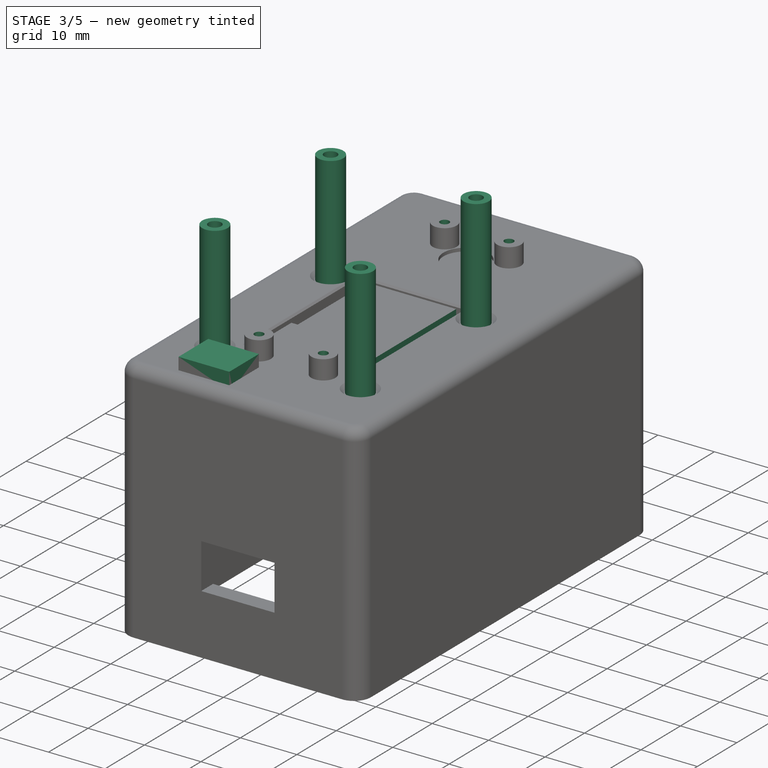
[diagram: stage 3 of 5 — iso view after this stage's code; geometry added in this stage tinted green]
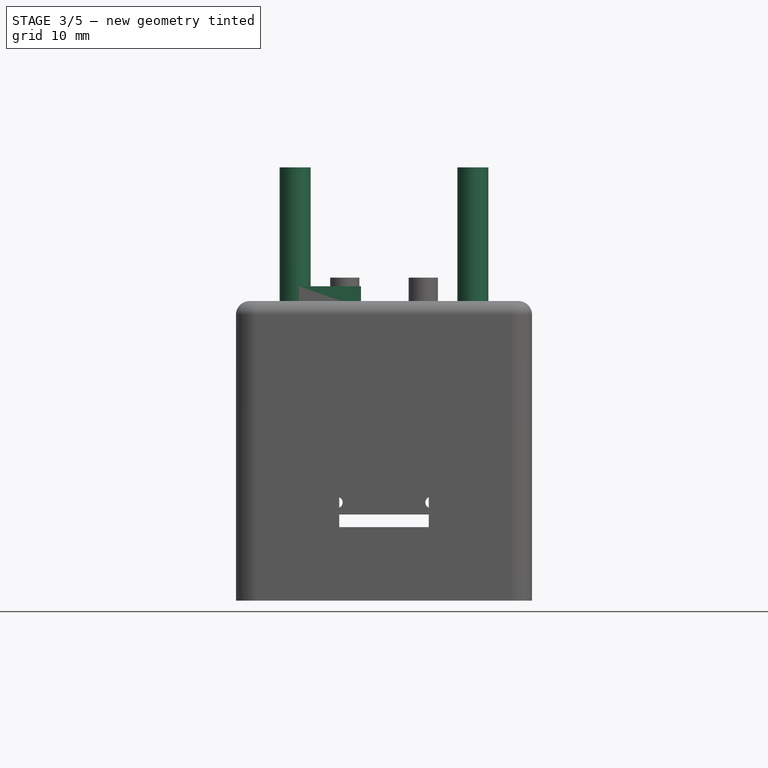
[diagram: stage 3 of 5 — front view after this stage's code; geometry added in this stage tinted green]
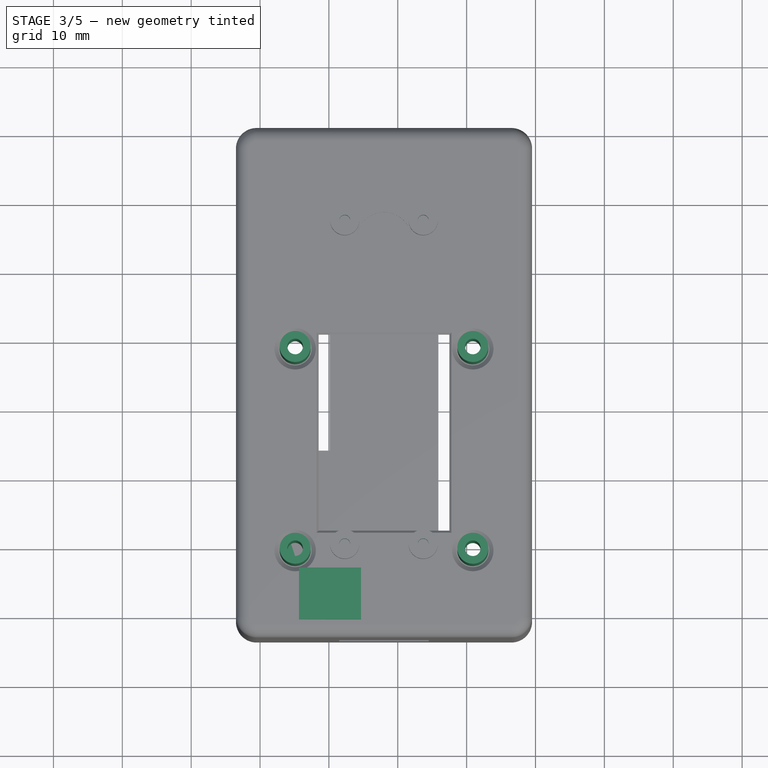
[diagram: stage 3 of 5 — top view after this stage's code; geometry added in this stage tinted green]
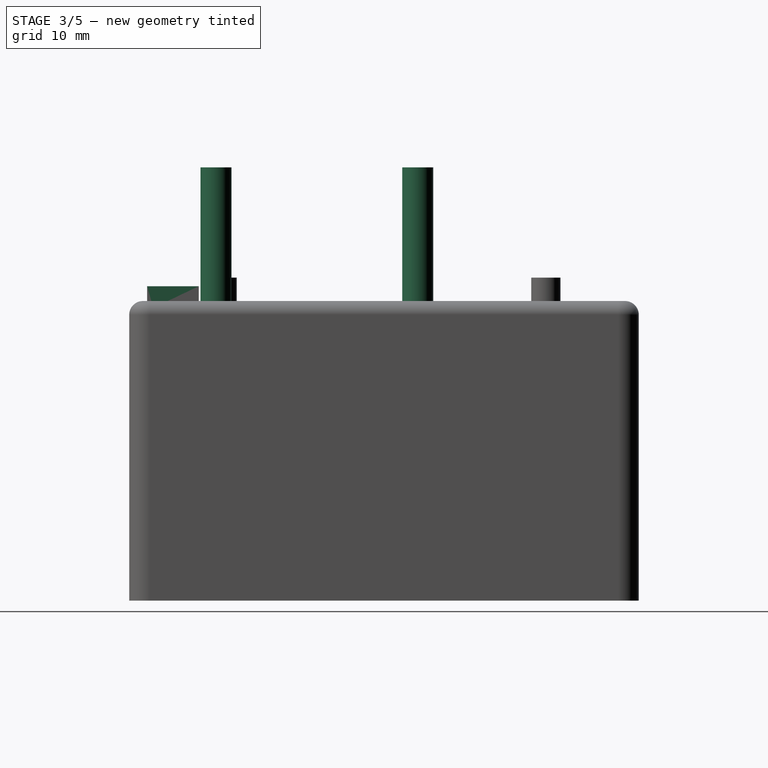
[diagram: stage 3 of 5 — right view after this stage's code; geometry added in this stage tinted green]
FEATURE [Sketcher::SketchObject] Sketch012
  FullyConstrained = true
  MapMode = 5
  Placement = pos=(0,0,2) rot=(0,0,1;0rad)
  Support = -> [DatumPlane003]
  expr: Constraints[107] = <<params>>.pico_pin_slot_radius
  expr: Constraints[108] = <<params>>.pico_pin_space
  expr: Constraints[53] = Spreadsheet.m2_clearance_hole_diameter * 2
  expr: Constraints[77] = Spreadsheet.m2_clearance_hole_diameter
  expr: Constraints[8] = <<params>>.base_plate_width
  expr: Constraints[9] = <<params>>.base_plate_length
  sketch-geometry (45):
    g0: LineSegment StartX=0 StartY=67 StartZ=0 EndX=36 EndY=67 EndZ=0
    g1: LineSegment StartX=36 StartY=67 StartZ=0 EndX=36 EndY=0 EndZ=0
    g2: LineSegment StartX=36 StartY=0 StartZ=0 EndX=0 EndY=0 EndZ=0
    g3: LineSegment StartX=0 StartY=0 StartZ=0 EndX=0 EndY=67 EndZ=0
    g4: LineSegment StartX=0 StartY=67 StartZ=0 EndX=4.4 EndY=67 EndZ=0
    g5: LineSegment StartX=4.4 StartY=67 StartZ=0 EndX=4.4 EndY=62.6 EndZ=0
    g6: LineSegment StartX=4.4 StartY=62.6 StartZ=0 EndX=0 EndY=62.6 EndZ=0
    g7: LineSegment StartX=0 StartY=62.6 StartZ=0 EndX=0 EndY=67 EndZ=0
    g8: LineSegment StartX=36 StartY=67 StartZ=0 EndX=31.6 EndY=67 EndZ=0
    g9: LineSegment StartX=31.6 StartY=67 StartZ=0 EndX=31.6 EndY=62.6 EndZ=0
    g10: LineSegment StartX=31.6 StartY=62.6 StartZ=0 EndX=36 EndY=62.6 EndZ=0
    g11: LineSegment StartX=36 StartY=62.6 StartZ=0 EndX=36 EndY=67 EndZ=0
    g12: LineSegment StartX=31.6 StartY=4.4 StartZ=0 EndX=36 EndY=4.4 EndZ=0
    g13: LineSegment StartX=36 StartY=4.4 StartZ=0 EndX=36 EndY=0 EndZ=0
    g14: LineSegment StartX=36 StartY=0 StartZ=0 EndX=31.6 EndY=0 EndZ=0
    g15: LineSegment StartX=31.6 StartY=0 StartZ=0 EndX=31.6 EndY=4.4 EndZ=0
    g16: LineSegment StartX=4.4 StartY=4.4 StartZ=0 EndX=0 EndY=4.4 EndZ=0
    g17: LineSegment StartX=0 StartY=4.4 StartZ=0 EndX=0 EndY=0 EndZ=0
    g18: LineSegment StartX=0 StartY=0 StartZ=0 EndX=4.4 EndY=0 EndZ=0
    g19: LineSegment StartX=4.4 StartY=0 StartZ=0 EndX=4.4 EndY=4.4 EndZ=0
    g20: LineSegment StartX=0 StartY=67 StartZ=0 EndX=4.4 EndY=62.6 EndZ=0
    g21: LineSegment StartX=0 StartY=62.6 StartZ=0 EndX=4.4 EndY=67 EndZ=0
    g22: LineSegment StartX=31.6 StartY=67 StartZ=0 EndX=36 EndY=62.6 EndZ=0
    g23: LineSegment StartX=31.6 StartY=62.6 StartZ=0 EndX=36 EndY=67 EndZ=0
    g24: LineSegment StartX=0 StartY=0 StartZ=0 EndX=4.4 EndY=4.4 EndZ=0
    g25: LineSegment StartX=0 StartY=4.4 StartZ=0 EndX=4.4 EndY=0 EndZ=0
    g26: LineSegment StartX=31.6 StartY=0 StartZ=0 EndX=36 EndY=4.4 EndZ=0
    g27: LineSegment StartX=31.6 StartY=4.4 StartZ=0 EndX=36 EndY=0 EndZ=0
    g28: Circle CenterX=2.2 CenterY=64.8 CenterZ=0 NormalX=0 NormalY=0 NormalZ=1 AngleXU=0 Radius=1.1
    g29: Circle CenterX=33.8 CenterY=64.8 CenterZ=0 NormalX=0 NormalY=0 NormalZ=1 AngleXU=0 Radius=1.1
    g30: Circle CenterX=33.8 CenterY=2.2 CenterZ=0 NormalX=0 NormalY=0 NormalZ=1 AngleXU=0 Radius=1.1
    g31: Circle CenterX=2.2 CenterY=2.2 CenterZ=0 NormalX=0 NormalY=0 NormalZ=1 AngleXU=0 Radius=1.1
    g32: ArcOfCircle CenterX=9.11 CenterY=59 CenterZ=0 NormalX=0 NormalY=0 NormalZ=1 AngleXU=0 Radius=1 StartAngle=7e-16 EndAngle=3.14159
    g33: ArcOfCircle CenterX=9.11 CenterY=8 CenterZ=0 NormalX=0 NormalY=0 NormalZ=1 AngleXU=0 Radius=1 StartAngle=3.14159 EndAngle=6.28319
    g34: LineSegment StartX=8.11 StartY=59 StartZ=0 EndX=8.11 EndY=8 EndZ=0
    g35: LineSegment StartX=10.11 StartY=8 StartZ=0 EndX=10.11 EndY=59 EndZ=0
    g36: ArcOfCircle CenterX=26.89 CenterY=8 CenterZ=0 NormalX=0 NormalY=0 NormalZ=1 AngleXU=0 Radius=1 StartAngle=3.14159 EndAngle=6.28319
    g37: ArcOfCircle CenterX=26.89 CenterY=59 CenterZ=0 NormalX=0 NormalY=0 NormalZ=1 AngleXU=0 Radius=1 StartAngle=0 EndAngle=3.14159
    g38: LineSegment StartX=27.89 StartY=8 StartZ=0 EndX=27.89 EndY=59 EndZ=0
    g39: LineSegment StartX=25.89 StartY=59 StartZ=0 EndX=25.89 EndY=8 EndZ=0
    g40: LineSegment StartX=0 StartY=59 StartZ=0 EndX=9.11 EndY=59 EndZ=0
    g41: LineSegment StartX=9.11 StartY=59 StartZ=0 EndX=26.89 EndY=59 EndZ=0
    g42: LineSegment StartX=26.89 StartY=59 StartZ=0 EndX=36 EndY=59 EndZ=0
    g43: LineSegment StartX=26.89 StartY=59 StartZ=0 EndX=26.89 EndY=67 EndZ=0
    g44: LineSegment StartX=26.89 StartY=8 StartZ=0 EndX=26.89 EndY=0 EndZ=0
  constraints (117):
    c: Coincident(g0,g1)
    c: Coincident(g1,g2)
    c: Coincident(g2,g3)
    c: Coincident(g3,g0)
    c: Horizontal(g0)
    c: Horizontal(g2)
    c: Vertical(g1)
    c: Vertical(g3)
    c: DistanceX(g2,g2) = 36
    c: DistanceY(g3,g3) = 67
    c: Coincident(g4,g5)
    c: Coincident(g5,g6)
    c: Coincident(g6,g7)
    c: Coincident(g7,g4)
    c: Horizontal(g4)
    c: Horizontal(g6)
    c: Vertical(g5)
    c: Vertical(g7)
    c: Coincident(g4,g0)
    c: Coincident(g8,g9)
    c: Coincident(g9,g10)
    c: Coincident(g10,g11)
    c: Coincident(g11,g8)
    c: Horizontal(g8)
    c: Horizontal(g10)
    c: Vertical(g9)
    c: Vertical(g11)
    c: Coincident(g8,g0)
    c: Coincident(g12,g13)
    c: Coincident(g13,g14)
    c: Coincident(g14,g15)
    c: Coincident(g15,g12)
    c: Horizontal(g12)
    c: Horizontal(g14)
    c: Vertical(g13)
    c: Vertical(g15)
    c: Coincident(g13,g1)
    c: Coincident(g16,g17)
    c: Coincident(g17,g18)
    c: Coincident(g18,g19)
    c: Coincident(g19,g16)
    c: Horizontal(g16)
    c: Horizontal(g18)
    c: Vertical(g17)
    c: Vertical(g19)
    c: Coincident(g17,g2)
    c: Equal(g16,g19)
    c: Equal(g19,g15)
    c: Equal(g15,g12)
    c: Equal(g12,g10)
    c: Equal(g10,g9)
    c: Equal(g9,g5)
    c: Equal(g5,g6)
    c: DistanceY(g17,g17) = 4.4
    c: Coincident(g20,g0)
    c: Coincident(g20,g5)
    c: Coincident(g21,g6)
    c: Coincident(g21,g4)
    c: Coincident(g22,g8)
    c: Coincident(g22,g10)
    c: Coincident(g23,g9)
    c: Coincident(g23,g0)
    c: Coincident(g24,g2)
    c: Coincident(g24,g16)
    c: Coincident(g25,g16)
    c: Coincident(g25,g18)
    c: Coincident(g26,g14)
    c: Coincident(g26,g12)
    c: Coincident(g27,g12)
    c: Coincident(g27,g1)
    c: PointOnObject(g28,g20)
    c: PointOnObject(g29,g23)
    c: PointOnObject(g30,g27)
    c: PointOnObject(g31,g24)
    c: Equal(g31,g30)
    c: Equal(g30,g29)
    c: Equal(g29,g28)
    c: Diameter(g28) = 2.2
    c: PointOnObject(g28,g21)
    c: PointOnObject(g29,g22)
    c: PointOnObject(g31,g25)
    c: PointOnObject(g30,g26)
    c: Coincident(g2,g-1)
    c: Tangent(g32,g34) = -1.5708
    c: Tangent(g34,g33) = -1.5708
    c: Tangent(g33,g35) = -1.5708
    c: Tangent(g35,g32) = -1.5708
    c: Equal(g32,g33)
    c: Tangent(g36,g38) = -1.5708
    c: Tangent(g38,g37) = -1.5708
    c: Tangent(g37,g39) = -1.5708
    c: Tangent(g39,g36) = -1.5708
    c: Equal(g36,g37)
    c: Vertical(g37,g36)
    c: Vertical(g33,g32)
    c: Horizontal(g32,g37)
    c: Horizontal(g33,g36)
    c: Equal(g33,g36)
    c: PointOnObject(g40,g3)
    c: Coincident(g40,g32)
    c: Horizontal(g40)
    c: Coincident(g40,g41)
    c: Coincident(g41,g37)
    c: Coincident(g41,g42)
    c: PointOnObject(g42,g1)
    c: Horizontal(g42)
    c: Equal(g40,g42)
    c: Radius(g32) = 1
    c: Distance(g41) = 17.78
    c: Coincident(g43,g37)
    c: PointOnObject(g43,g0)
    c: Vertical(g43)
    c: Coincident(g44,g36)
    c: PointOnObject(g44,g2)
    c: Vertical(g44)
    c: Equal(g44,g43)
    c: DistanceY(g38,g38) = 51
FEATURE [PartDesign::Pocket] Pocket002  label="plate mounting holes & cutouts"
  BaseFeature = -> Pad004
  Direction = (0,0,-1)
  Length = 5
  Length2 = 5
  Profile = -> Sketch012
  ReferenceAxis = -> Sketch012 [N_Axis]
  Type = 1
FEATURE [Sketcher::SketchObject] Sketch022
  ExternalGeometry = -> [Sketch007]
  FullyConstrained = true
  MapMode = 5
  Support = -> [XY_Plane002]
  expr: Constraints[3] = Spreadsheet.m2_tapped_hole_diameter
  sketch-geometry (4):
    g0: Circle CenterX=12.3 CenterY=10 CenterZ=0 NormalX=0 NormalY=0 NormalZ=1 AngleXU=0 Radius=0.8
    g1: Circle CenterX=23.7 CenterY=10 CenterZ=0 NormalX=0 NormalY=0 NormalZ=1 AngleXU=0 Radius=0.8
    g2: Circle CenterX=12.3 CenterY=57 CenterZ=0 NormalX=0 NormalY=0 NormalZ=1 AngleXU=0 Radius=0.8
    g3: Circle CenterX=23.7 CenterY=57 CenterZ=0 NormalX=0 NormalY=0 NormalZ=1 AngleXU=0 Radius=0.8
  constraints (8):
    c: Equal(g3,g2)
    c: Equal(g2,g1)
    c: Equal(g1,g0)
    c: Diameter(g0) = 1.6
    c: Coincident(g-4,g3)
    c: Coincident(g2,g-3)
    c: Coincident(g1,g-5)
    c: Coincident(g0,g-6)
FEATURE [PartDesign::Pocket] Pocket008  label="pico standoff holes"
  BaseFeature = -> Pocket002
  Direction = (0,0,-1)
  Length = 5
  Length2 = 5
  Profile = -> Sketch022
  ReferenceAxis = -> Sketch022 [N_Axis]
  Reversed = true
  Type = 1
FEATURE [PartDesign::Body] Body  label="bottom-plate"
  Group = -> [Sketch,Pad,DatumPlane,Sketch001,Sketch002,Pad001,Pad006,Sketch018,Pad020]
  Origin = -> Origin
  Tip = -> Pad020
FEATURE [Sketcher::SketchObject] Sketch040
  FullyConstrained = true
  MapMode = 5
  Placement = pos=(0,0,2) rot=(0,0,1;0rad)
  Support = -> [DatumPlane003]
  expr: Constraints[19] = <<params>>.base_plate_width
  expr: Constraints[20] = <<params>>.base_plate_length
  expr: Constraints[36] = <<params>>.screen_position
  expr: Constraints[60] = <<params>>.screen_hole_space
  expr: Constraints[8] = <<params>>.screen_pcb_width
  expr: Constraints[9] = <<params>>.screen_pcb_length
  sketch-geometry (22):
    g0: LineSegment StartX=2 StartY=6 StartZ=0 EndX=34 EndY=6 EndZ=0
    g1: LineSegment StartX=34 StartY=6 StartZ=0 EndX=34 EndY=41.5 EndZ=0
    g2: LineSegment StartX=34 StartY=41.5 StartZ=0 EndX=2 EndY=41.5 EndZ=0
    g3: LineSegment StartX=2 StartY=41.5 StartZ=0 EndX=2 EndY=6 EndZ=0
    g4: LineSegment StartX=0 StartY=0 StartZ=0 EndX=36 EndY=0 EndZ=0
    g5: LineSegment StartX=36 StartY=0 StartZ=0 EndX=36 EndY=67 EndZ=0
    g6: LineSegment StartX=36 StartY=67 StartZ=0 EndX=0 EndY=67 EndZ=0
    g7: LineSegment StartX=0 StartY=67 StartZ=0 EndX=0 EndY=0 EndZ=0
    g8: LineSegment StartX=0 StartY=41.5 StartZ=0 EndX=2 EndY=41.5 EndZ=0
    g9: LineSegment StartX=34 StartY=41.5 StartZ=0 EndX=36 EndY=41.5 EndZ=0
    g10: LineSegment StartX=5.1 StartY=9.1 StartZ=0 EndX=30.9 EndY=9.1 EndZ=0
    g11: LineSegment StartX=30.9 StartY=9.1 StartZ=0 EndX=30.9 EndY=38.4 EndZ=0
    g12: LineSegment StartX=30.9 StartY=38.4 StartZ=0 EndX=5.1 EndY=38.4 EndZ=0
    g13: LineSegment StartX=5.1 StartY=38.4 StartZ=0 EndX=5.1 EndY=9.1 EndZ=0
    g14: Circle CenterX=5.1 CenterY=9.1 CenterZ=0 NormalX=0 NormalY=0 NormalZ=1 AngleXU=0 Radius=2.25
    g15: Circle CenterX=30.9 CenterY=9.1 CenterZ=0 NormalX=0 NormalY=0 NormalZ=1 AngleXU=0 Radius=2.25
    g16: Circle CenterX=5.1 CenterY=38.4 CenterZ=0 NormalX=0 NormalY=0 NormalZ=1 AngleXU=0 Radius=2.25
    g17: Circle CenterX=30.9 CenterY=38.4 CenterZ=0 NormalX=0 NormalY=0 NormalZ=1 AngleXU=0 Radius=2.25
    g18: LineSegment StartX=5.1 StartY=9.1 StartZ=0 EndX=5.1 EndY=6 EndZ=0
    g19: LineSegment StartX=5.1 StartY=9.1 StartZ=0 EndX=2 EndY=9.1 EndZ=0
    g20: LineSegment StartX=30.9 StartY=38.4 StartZ=0 EndX=34 EndY=38.4 EndZ=0
    g21: LineSegment StartX=30.9 StartY=38.4 StartZ=0 EndX=30.9 EndY=41.5 EndZ=0
  constraints (61):
    c: Coincident(g0,g1)
    c: Coincident(g1,g2)
    c: Coincident(g2,g3)
    c: Coincident(g3,g0)
    c: Horizontal(g0)
    c: Horizontal(g2)
    c: Vertical(g1)
    c: Vertical(g3)
    c: DistanceX(g2,g2) = 32
    c: DistanceY(g3,g3) = 35.5
    c: Coincident(g4,g5)
    c: Coincident(g5,g6)
    c: Coincident(g6,g7)
    c: Coincident(g7,g4)
    c: Horizontal(g4)
    c: Horizontal(g6)
    c: Vertical(g5)
    c: Vertical(g7)
    c: Coincident(g4,g-1)
    c: DistanceX(g6,g6) = 36
    c: DistanceY(g5,g5) = 67
    c: PointOnObject(g8,g7)
    c: Coincident(g8,g2)
    c: Coincident(g9,g1)
    c: PointOnObject(g9,g5)
    c: Horizontal(g9)
    c: Horizontal(g8)
    c: Equal(g8,g9)
    c: Coincident(g10,g11)
    c: Coincident(g11,g12)
    c: Coincident(g12,g13)
    c: Coincident(g13,g10)
    c: Horizontal(g10)
    c: Horizontal(g12)
    c: Vertical(g11)
    c: Vertical(g13)
    c: Distance(g0,g4) = 6
    c: Coincident(g14,g10)
    c: Coincident(g15,g10)
    c: Coincident(g16,g12)
    c: Coincident(g17,g11)
    c: Equal(g17,g16)
    c: Equal(g16,g14)
    c: Equal(g14,g15)
    c: Diameter(g16) = 4.5
    c: Coincident(g18,g14)
    c: PointOnObject(g18,g0)
    c: Coincident(g19,g14)
    c: PointOnObject(g19,g3)
    c: Coincident(g20,g17)
    c: PointOnObject(g20,g1)
    c: Coincident(g21,g17)
    c: PointOnObject(g21,g2)
    c: Vertical(g21)
    c: Horizontal(g20)
    c: Vertical(g18)
    c: Horizontal(g19)
    c: Equal(g19,g18)
    c: Equal(g18,g20)
    c: Equal(g20,g21)
    c: DistanceX(g20,g20) = 3.1
FEATURE [PartDesign::Pad] Pad024  label="screen standoffs001"
  BaseFeature = -> Pocket008
  Direction = (0,0,1)
  Length = 20
  Length2 = 10
  Profile = -> Sketch040
  ReferenceAxis = -> Sketch040 [N_Axis]
  Type = 0
  expr: Length = <<params>>.screen_standoff_height
FEATURE [Sketcher::SketchObject] Sketch041
  ExternalGeometry = -> [Pad024]
  FullyConstrained = true
  MapMode = 5
  Support = -> [XY_Plane002]
  sketch-geometry (4):
    g0: Circle CenterX=5.1 CenterY=38.4 CenterZ=0 NormalX=0 NormalY=0 NormalZ=1 AngleXU=0 Radius=1.1303
    g1: Circle CenterX=30.9 CenterY=38.4 CenterZ=0 NormalX=0 NormalY=0 NormalZ=1 AngleXU=0 Radius=1.1303
    g2: Circle CenterX=30.9 CenterY=9.1 CenterZ=0 NormalX=0 NormalY=0 NormalZ=1 AngleXU=0 Radius=1.1303
    g3: Circle CenterX=5.1 CenterY=9.1 CenterZ=0 NormalX=0 NormalY=0 NormalZ=1 AngleXU=0 Radius=1.1303
  constraints (8):
    c: Coincident(g0,g-3)
    c: Coincident(g1,g-4)
    c: Coincident(g2,g-5)
    c: Coincident(g3,g-6)
    c: Equal(g3,g2)
    c: Equal(g2,g1)
    c: Equal(g1,g0)
    c: Diameter(g0) = 2.2606
FEATURE [PartDesign::Pocket] Pocket012  label="screen standoff holes"
  BaseFeature = -> Pad024
  Direction = (0,0,-1)
  Length = 5
  Length2 = 5
  Profile = -> Sketch041
  ReferenceAxis = -> Sketch041 [N_Axis]
  Reversed = true
  Type = 1
FEATURE [Sketcher::SketchObject] Sketch045
  FullyConstrained = true
  MapMode = 5
  Support = -> [XY_Plane007]
  sketch-geometry (9):
    g0: LineSegment StartX=0 StartY=0 StartZ=0 EndX=20.32 EndY=0 EndZ=0
    g1: LineSegment StartX=20.32 StartY=0 StartZ=0 EndX=20.32 EndY=23.622 EndZ=0
    g2: LineSegment StartX=20.32 StartY=23.622 StartZ=0 EndX=0 EndY=23.622 EndZ=0
    g3: LineSegment StartX=0 StartY=23.622 StartZ=0 EndX=0 EndY=0 EndZ=0
    g4: LineSegment StartX=0 StartY=2.794 StartZ=0 EndX=2.413 EndY=2.794 EndZ=0
    g5: LineSegment StartX=2.413 StartY=2.794 StartZ=0 EndX=17.907 EndY=2.794 EndZ=0
    g6: LineSegment StartX=17.907 StartY=2.794 StartZ=0 EndX=20.32 EndY=2.794 EndZ=0
    g7: Circle CenterX=2.413 CenterY=2.794 CenterZ=0 NormalX=0 NormalY=0 NormalZ=1 AngleXU=0 Radius=1.27
    g8: Circle CenterX=17.907 CenterY=2.794 CenterZ=0 NormalX=0 NormalY=0 NormalZ=1 AngleXU=0 Radius=1.27
  constraints (25):
    c: Coincident(g0,g1)
    c: Coincident(g1,g2)
    c: Coincident(g2,g3)
    c: Coincident(g3,g0)
    c: Horizontal(g0)
    c: Horizontal(g2)
    c: Vertical(g1)
    c: Vertical(g3)
    c: Coincident(g0,g-1)
    c: DistanceX(g0,g0) = 20.32
    c: DistanceY(g1,g1) = 23.622
    c: PointOnObject(g4,g3)
    c: Horizontal(g4)
    c: Coincident(g4,g5)
    c: Horizontal(g5)
    c: Coincident(g5,g6)
    c: PointOnObject(g6,g1)
    c: Horizontal(g6)
    c: Equal(g6,g4)
    c: Distance(g4,g2) = 20.828
    c: DistanceX(g5,g5) = 15.494
    c: Coincident(g7,g4)
    c: Equal(g7,g8)
    c: Diameter(g8) = 2.54
    c: Coincident(g8,g5)
FEATURE [PartDesign::Pad] Pad028
  Direction = (0,0,1)
  Length = 1.6
  Length2 = 10
  Profile = -> Sketch045
  ReferenceAxis = -> Sketch045 [N_Axis]
  Type = 0
  expr: Length = <<params>>.husb238_board_thickness
FEATURE [Sketcher::SketchObject] Sketch046
  ExternalGeometry = -> [Pad028]
  FullyConstrained = true
  MapMode = 5
  Placement = pos=(0,0,1.6) rot=(0,0,1;0rad)
  Support = -> [Pad028]
  expr: Constraints[8] = <<params>>.usb_c_connector_width
  sketch-geometry (6):
    g0: LineSegment StartX=5.66 StartY=-0.9 StartZ=0 EndX=14.66 EndY=-0.9 EndZ=0
    g1: LineSegment StartX=14.66 StartY=-0.9 StartZ=0 EndX=14.66 EndY=6.6 EndZ=0
    g2: LineSegment StartX=14.66 StartY=6.6 StartZ=0 EndX=5.66 EndY=6.6 EndZ=0
    g3: LineSegment StartX=5.66 StartY=6.6 StartZ=0 EndX=5.66 EndY=-0.9 EndZ=0
    g4: LineSegment StartX=5.66 StartY=6.6 StartZ=0 EndX=0 EndY=6.6 EndZ=0
    g5: LineSegment StartX=14.66 StartY=6.6 StartZ=0 EndX=20.32 EndY=6.6 EndZ=0
  constraints (18):
    c: Coincident(g0,g1)
    c: Coincident(g1,g2)
    c: Coincident(g2,g3)
    c: Coincident(g3,g0)
    c: Horizontal(g0)
    c: Horizontal(g2)
    c: Vertical(g1)
    c: Vertical(g3)
    c: DistanceX(g0,g0) = 9
    c: DistanceY(g0,g-1) = 0.9
    c: DistanceY(g1,g1) = 7.5
    c: Coincident(g4,g2)
    c: PointOnObject(g4,g-2)
    c: Horizontal(g4)
    c: Coincident(g5,g1)
    c: PointOnObject(g5,g-3)
    c: Horizontal(g5)
    c: Equal(g5,g4)
FEATURE [PartDesign::Pad] Pad029
  BaseFeature = -> Pad028
  Direction = (0,0,1)
  Length = 3.15
  Length2 = 10
  Profile = -> Sketch046
  ReferenceAxis = -> Sketch046 [N_Axis]
  Type = 0
  expr: Length = <<params>>.usb_c_connector_height
FEATURE [PartDesign::Body] Body007  label="husb238"
  Group = -> [Sketch045,Pad028,Sketch046,Pad029]
  Origin = -> Origin007
  Placement = pos=(7.84,0.9,10) rot=(0,0,1;0rad)
  Tip = -> Pad029
  expr: .Placement.Base.x = <<params>>.base_plate_width / 2 - <<params>>.husb238_board_width / 2
  expr: .Placement.Base.z = <<params>>.base_plate_height + <<params>>.husb238_standoff_height
FEATURE [Sketcher::SketchObject] Sketch047
  FullyConstrained = true
  MapMode = 5
  Support = -> [XY_Plane002]
  expr: Constraints[13] = <<params>>.base_plate_width
  expr: Constraints[15] = <<params>>.m2_clearance_hole_diameter * 2
  expr: Constraints[22] = <<params>>.m2_tapped_hole_diameter
  expr: Constraints[48] = <<params>>.pico_pin_space
  expr: Constraints[49] = <<params>>.pico_pin_slot_radius * 2
  expr: Constraints[50] = <<params>>.base_plate_length / 2
  sketch-geometry (19):
    g0: LineSegment StartX=15.8 StartY=0 StartZ=0 EndX=20.2 EndY=0 EndZ=0
    g1: LineSegment StartX=20.2 StartY=0 StartZ=0 EndX=20.2 EndY=4.4 EndZ=0
    g2: LineSegment StartX=20.2 StartY=4.4 StartZ=0 EndX=15.8 EndY=4.4 EndZ=0
    g3: LineSegment StartX=15.8 StartY=4.4 StartZ=0 EndX=15.8 EndY=0 EndZ=0
    g4: LineSegment StartX=0 StartY=0 StartZ=0 EndX=8.11 EndY=0 EndZ=0
    g5: LineSegment StartX=20.2 StartY=0 StartZ=0 EndX=25.89 EndY=0 EndZ=0
    g6: LineSegment StartX=15.8 StartY=4.4 StartZ=0 EndX=20.2 EndY=0 EndZ=0
    g7: LineSegment StartX=15.8 StartY=0 StartZ=0 EndX=20.2 EndY=4.4 EndZ=0
    g8: Circle CenterX=18 CenterY=2.2 CenterZ=0 NormalX=0 NormalY=0 NormalZ=1 AngleXU=0 Radius=0.8
    g9: LineSegment StartX=10.11 StartY=0 StartZ=0 EndX=10.11 EndY=33.5 EndZ=0
    g10: LineSegment StartX=10.11 StartY=33.5 StartZ=0 EndX=8.11 EndY=33.5 EndZ=0
    g11: LineSegment StartX=8.11 StartY=33.5 StartZ=0 EndX=8.11 EndY=0 EndZ=0
    g12: LineSegment StartX=27.89 StartY=0 StartZ=0 EndX=27.89 EndY=33.5 EndZ=0
    g13: LineSegment StartX=27.89 StartY=33.5 StartZ=0 EndX=25.89 EndY=33.5 EndZ=0
    g14: LineSegment StartX=25.89 StartY=33.5 StartZ=0 EndX=25.89 EndY=0 EndZ=0
    g15: LineSegment StartX=27.89 StartY=0 StartZ=0 EndX=36 EndY=0 EndZ=0
    g16: LineSegment StartX=10.11 StartY=0 StartZ=0 EndX=15.8 EndY=0 EndZ=0
    g17: LineSegment StartX=8.11 StartY=0 StartZ=0 EndX=10.11 EndY=0 EndZ=0
    g18: LineSegment StartX=25.89 StartY=0 StartZ=0 EndX=27.89 EndY=0 EndZ=0
  constraints (52):
    c: Coincident(g0,g1)
    c: Coincident(g1,g2)
    c: Coincident(g2,g3)
    c: Coincident(g3,g0)
    c: Horizontal(g0)
    c: Horizontal(g2)
    c: Vertical(g1)
    c: Vertical(g3)
    c: PointOnObject(g0,g-1)
    c: Coincident(g4,g-1)
    c: Coincident(g16,g0)
    c: Coincident(g5,g0)
    c: PointOnObject(g15,g-1)
    c: DistanceX(g4,g15) = 36
    c: Equal(g0,g1)
    c: DistanceX(g2,g2) = 4.4
    c: Coincident(g6,g2)
    c: Coincident(g6,g0)
    c: Coincident(g7,g0)
    c: Coincident(g7,g1)
    c: PointOnObject(g8,g6)
    c: PointOnObject(g8,g7)
    c: Diameter(g8) = 1.6
    c: Coincident(g9,g10)
    c: Coincident(g10,g11)
    c: Horizontal(g10)
    c: Vertical(g9)
    c: Vertical(g11)
    c: Coincident(g12,g13)
    c: Coincident(g13,g14)
    c: Horizontal(g13)
    c: Vertical(g12)
    c: Vertical(g14)
    c: Coincident(g5,g14)
    c: Coincident(g4,g11)
    c: Coincident(g17,g11)
    c: Coincident(g18,g14)
    c: Coincident(g18,g12)
    c: Coincident(g17,g9)
    c: Equal(g14,g9)
    c: Equal(g10,g13)
    c: PointOnObject(g14,g-1)
    c: Coincident(g16,g9)
    c: PointOnObject(g9,g-1)
    c: PointOnObject(g11,g-1)
    c: Equal(g15,g4)
    c: Coincident(g12,g15)
    c: PointOnObject(g12,g-1)
    c: DistanceX(g9,g12) = 17.78
    c: DistanceX(g10,g10) = 2
    c: DistanceY(g12,g12) = 33.5
    c: Equal(g16,g5)
FEATURE [PartDesign::Pocket] Pocket  label="pico removal slot"
  BaseFeature = -> Pocket012
  Direction = (0,0,-1)
  Length = 5
  Length2 = 5
  Profile = -> Sketch047
  ReferenceAxis = -> Sketch047 [N_Axis]
  Reversed = true
  Type = 1
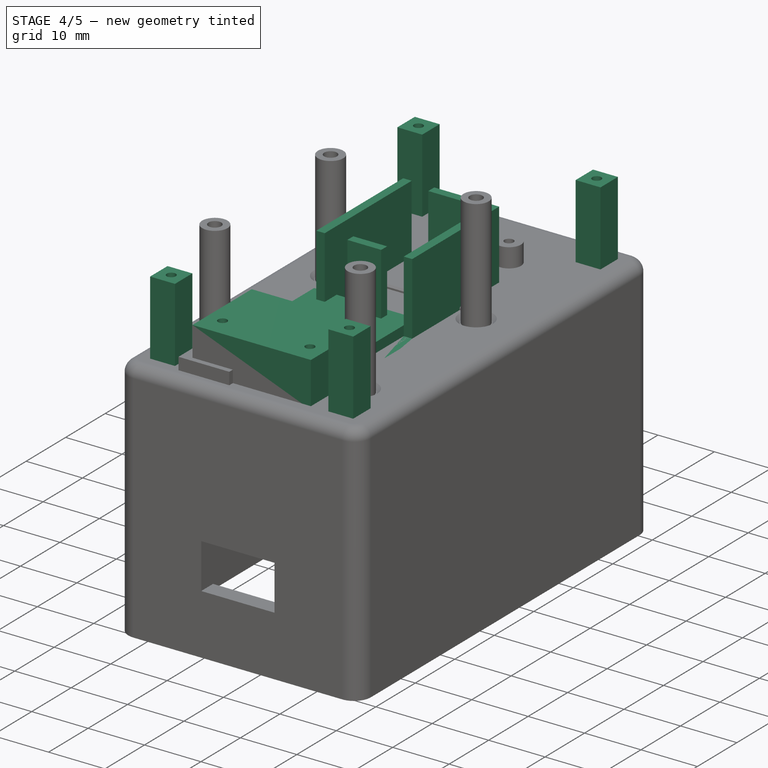
[diagram: stage 4 of 5 — iso view after this stage's code; geometry added in this stage tinted green]
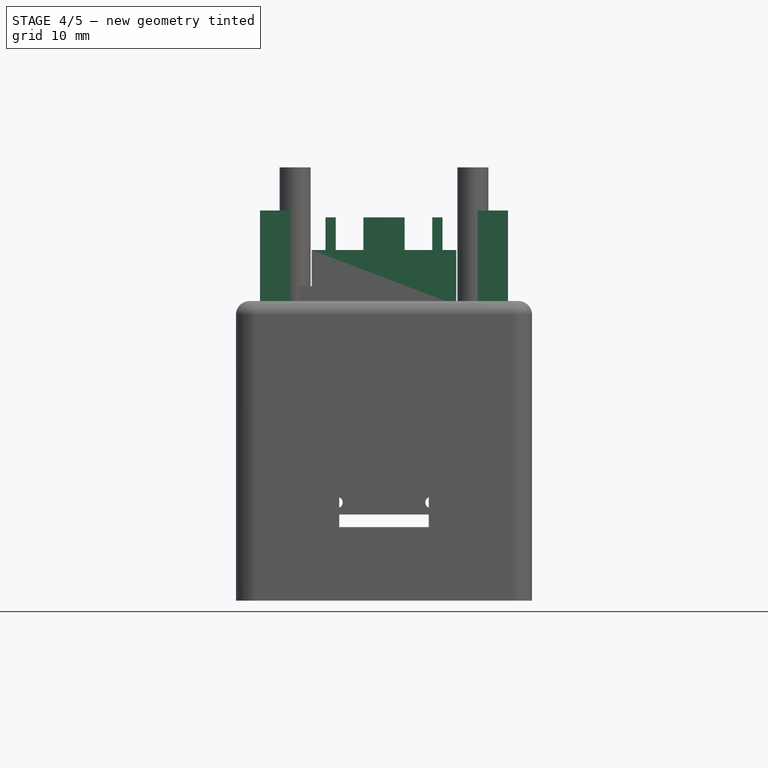
[diagram: stage 4 of 5 — front view after this stage's code; geometry added in this stage tinted green]
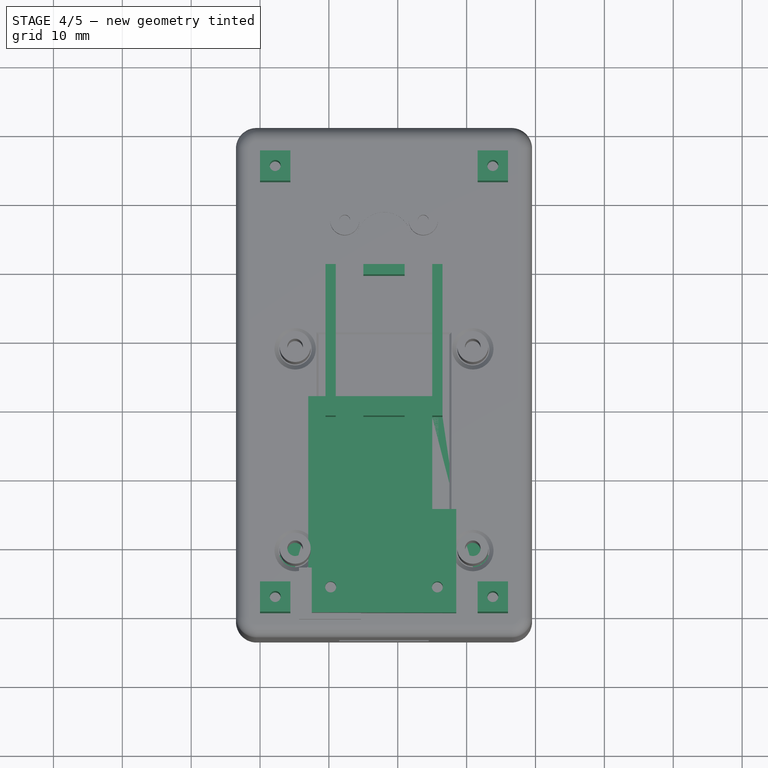
[diagram: stage 4 of 5 — top view after this stage's code; geometry added in this stage tinted green]
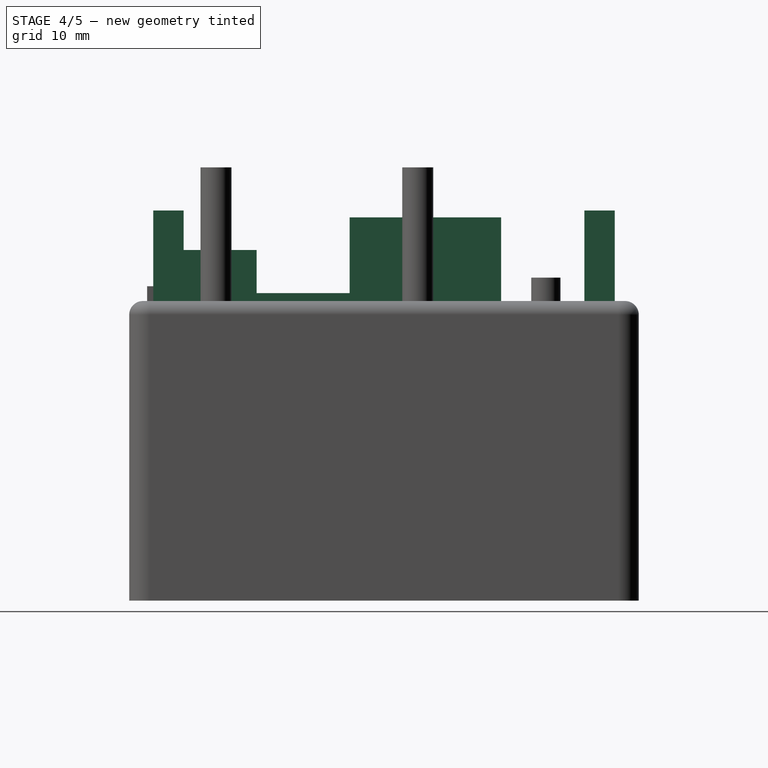
[diagram: stage 4 of 5 — right view after this stage's code; geometry added in this stage tinted green]
FEATURE [Sketcher::SketchObject] Sketch
  FullyConstrained = true
  MapMode = 5
  Support = -> [XY_Plane]
  expr: Constraints[10] = <<params>>.base_plate_length
  expr: Constraints[9] = <<params>>.base_plate_width
  sketch-geometry (4):
    g0: LineSegment StartX=0 StartY=0 StartZ=0 EndX=36 EndY=0 EndZ=0
    g1: LineSegment StartX=36 StartY=0 StartZ=0 EndX=36 EndY=67 EndZ=0
    g2: LineSegment StartX=36 StartY=67 StartZ=0 EndX=0 EndY=67 EndZ=0
    g3: LineSegment StartX=0 StartY=67 StartZ=0 EndX=0 EndY=0 EndZ=0
  constraints (11):
    c: Coincident(g0,g1)
    c: Coincident(g1,g2)
    c: Coincident(g2,g3)
    c: Coincident(g3,g0)
    c: Horizontal(g0)
    c: Horizontal(g2)
    c: Vertical(g1)
    c: Vertical(g3)
    c: Coincident(g0,g-1)
    c: DistanceX(g0,g0) = 36
    c: DistanceY(g1,g1) = 67
FEATURE [PartDesign::Pad] Pad  label="base"
  Direction = (0,0,1)
  Length = 2
  Length2 = 10
  Profile = -> Sketch
  ReferenceAxis = -> Sketch [N_Axis]
  Type = 0
  expr: Length = <<params>>.base_plate_height
FEATURE [PartDesign::Plane] DatumPlane
  AttachmentOffset = pos=(0,0,2) rot=(0,0,1;0rad)
  Length = 75.9827
  MapMode = 2
  Placement = pos=(0,0,2) rot=(0,0,1;0rad)
  ResizeMode = 0
  Support = -> [XY_Plane]
  Width = 106.983
  expr: .AttachmentOffset.Base.z = <<params>>.base_plate_height
FEATURE [Spreadsheet::Sheet] Spreadsheet  label="params"
  cells = A1=base_plate_height; B1(base_plate_height)==2mm; A2=base_plate_width; B2(base_plate_width)==36mm; A3=base_plate_length; B3(base_plate_length)==67mm; A4=base_plate_recess; B4(base_plate_recess)==1.5mm; C4=distance between bottom of base-plate and bottom of case; A5=base_plate_standoff_height; B5(base_plate_standoff_height)==mini360_cage_height + 1mm; C5=distance from top of base-plate to bottom of mid-plate; A7=mid_plate_height; B7(mid_plate_height)==2mm; A10=top_plate_standoff_height; B10(top_plate_standoff_height)==5mm; A12=interior_plate_case_clearance; B12(interior_plate_case_clearance)==0.5mm; A14=lid_thickness; B14(lid_thickness)==screen_display_height + 0.5mm; A16=case_wall_thickness; B16(case_wall_thickness)==3mm; A17=case_height; B17(case_height)==base_plate_recess + base_plate_height + base_plate_standoff_height + mid_plate_height + screen_standoff_height + screen_pcb_thickness; A19=husb238_standoff_height; B19(husb238_standoff_height)==8mm; A20=husb238_board_thickness; B20(husb238_board_thickness)==1.6mm; A21=husb238_board_width; B21(husb238_board_width)==0.8in; A23=mini360_cage_height; B23(mini360_cage_height)==husb238_standoff_height + husb238_board_thickness + usb_c_connector_height; C23=this needs to be the max of the screw terminal height and the husb238 height; A25=usb_c_connector_height; B25(usb_c_connector_height)==3.15mm; A26=usb_c_connector_width; B26(usb_c_connector_width)==9mm; A28=usb_c_window_height; B28(usb_c_window_height)==8mm; C28=the size of the largest usb-c connector in my pile, plus about 2mm; A29=usb_c_window_width; B29(usb_c_window_width)==13mm; C29=the size of the largest usb-c connector in my pile, plus about 2mm; A31=pico_standoff_height; B31(pico_standoff_height)==4mm; A32=pico_board_thickness; B32(pico_board_thickness)==pico_pcb_thickness + pico_micro_b_thickness; C32=this includes the USB micro-B connector, the PCB itself is only 1mm thick; A33=pico_micro_b_thickness; B33(pico_micro_b_thickness)==3mm; A34=pico_pcb_thickness; B34(pico_pcb_thickness)==1mm; A35=pico_pin_space; B35(pico_pin_space)==17.78mm; A36=pico_pin_slot_radius; B36(pico_pin_slot_radius)==1mm; A38=m2_tapped_hole_diameter; B38(m2_tapped_hole_diameter)==1.6mm; C38=this is for tapping and screwing an m2 screw into; A39=m2_clearance_hole_diameter; B39(m2_clearance_hole_diameter)==2.2mm; C39=clearance hole for an m2 screw; A41=screw_terminal_hole_spacing; B41(screw_terminal_hole_spacing)==18mm - 4.4mm; A43=knob_long_side; B43(knob_long_side)==14mm; A44=knob_short_side; B44(knob_short_side)==14mm; C44=the short sides have the electrical pins on them; A45=knob_position; B45(knob_position)==(base_plate_length - (screen_position + 35mm)) / 2 + screen_position + 35mm; C45=distance from beginning of plate to center of knob shaft; A47=screen_standoff_height; B47(screen_standoff_height)==20mm; A48=screen_position; B48(screen_position)==6mm; C48=distance from beginning of plate to beginning of screen; A49=screen_pcb_thickness; B49(screen_pcb_thickness)==1.65mm; A50=screen_pcb_width; B50(screen_pcb_width)==32mm; A51=screen_pcb_length; B51(screen_pcb_length)==35.5mm; A52=screen_hole_space; B52(screen_hole_space)==3.1mm; C52=distance from center of hole to edge of board; A53=screen_display_width; B53(screen_display_width)==18mm; A54=screen_display_length; B54(screen_display_length)==27.5mm; A55=screen_display_height; B55(screen_display_height)==2.1mm; A56=screen_unusable_length; B56(screen_unusable_length)==5mm
FEATURE [Sketcher::SketchObject] Sketch001
  FullyConstrained = true
  MapMode = 5
  Placement = pos=(0,0,2) rot=(0,0,1;0rad)
  Support = -> [DatumPlane]
  expr: Constraints[1] = Spreadsheet.m2_tapped_hole_diameter
  expr: Constraints[23] = <<params>>.base_plate_length
  expr: Constraints[39] = <<params>>.base_plate_width
  sketch-geometry (20):
    g0: Circle CenterX=10.253 CenterY=3.69 CenterZ=0 NormalX=0 NormalY=0 NormalZ=1 AngleXU=0 Radius=0.8
    g1: Circle CenterX=25.747 CenterY=3.69 CenterZ=0 NormalX=0 NormalY=0 NormalZ=1 AngleXU=0 Radius=0.8
    g2: LineSegment StartX=10.253 StartY=3.69 StartZ=0 EndX=25.747 EndY=3.69 EndZ=0
    g3: LineSegment StartX=28.5 StartY=0 StartZ=0 EndX=28.5 EndY=15 EndZ=0
    g4: LineSegment StartX=28.5 StartY=15 StartZ=0 EndX=7.5 EndY=15 EndZ=0
    g5: LineSegment StartX=7.5 StartY=15 StartZ=0 EndX=7.5 EndY=0 EndZ=0
    g6: LineSegment StartX=28.16 StartY=0 StartZ=0 EndX=28.16 EndY=23.622 EndZ=0
    g7: LineSegment StartX=28.16 StartY=23.622 StartZ=0 EndX=7.84 EndY=23.622 EndZ=0
    g8: LineSegment StartX=7.84 StartY=23.622 StartZ=0 EndX=7.84 EndY=0 EndZ=0
    g9: LineSegment StartX=0 StartY=0 StartZ=0 EndX=36 EndY=0 EndZ=0
    g10: LineSegment StartX=36 StartY=0 StartZ=0 EndX=36 EndY=67 EndZ=0
    g11: LineSegment StartX=36 StartY=67 StartZ=0 EndX=0 EndY=67 EndZ=0
    g12: LineSegment StartX=0 StartY=67 StartZ=0 EndX=0 EndY=0 EndZ=0
    g13: LineSegment StartX=7.5 StartY=3.69 StartZ=0 EndX=7.84 EndY=3.69 EndZ=0
    g14: LineSegment StartX=7.84 StartY=3.69 StartZ=0 EndX=10.253 EndY=3.69 EndZ=0
    g15: LineSegment StartX=25.747 StartY=3.69 StartZ=0 EndX=28.16 EndY=3.69 EndZ=0
    g16: LineSegment StartX=28.16 StartY=3.69 StartZ=0 EndX=28.5 EndY=3.69 EndZ=0
    g17: LineSegment StartX=28.5 StartY=3.69 StartZ=0 EndX=36 EndY=3.69 EndZ=0
    g18: LineSegment StartX=0 StartY=3.69 StartZ=0 EndX=7.5 EndY=3.69 EndZ=0
    g19: LineSegment StartX=7.5 StartY=0 StartZ=0 EndX=28.5 EndY=0 EndZ=0
  constraints (59):
    c: Equal(g0,g1)
    c: Diameter(g1) = 1.6
    c: Coincident(g2,g1)
    c: Horizontal(g2)
    c: DistanceX(g2,g2) = 15.494
    c: Coincident(g3,g4)
    c: Horizontal(g4)
    c: Vertical(g3)
    c: Vertical(g5)
    c: DistanceY(g3,g3) = 15
    c: Coincident(g6,g7)
    c: Coincident(g7,g8)
    c: Horizontal(g7)
    c: Vertical(g6)
    c: Vertical(g8)
    c: Coincident(g9,g10)
    c: Coincident(g10,g11)
    c: Coincident(g11,g12)
    c: Coincident(g12,g9)
    c: Horizontal(g9)
    c: Horizontal(g11)
    c: Vertical(g10)
    c: Vertical(g12)
    c: DistanceY(g10,g10) = 67
    c: DistanceX(g7,g7) = 20.32
    c: DistanceY(g8,g8) = 23.622
    c: Coincident(g2,g0)
    c: PointOnObject(g13,g8)
    c: Horizontal(g13)
    c: Coincident(g14,g13)
    c: Coincident(g14,g0)
    c: Coincident(g15,g1)
    c: PointOnObject(g15,g6)
    c: Coincident(g16,g15)
    c: Horizontal(g16)
    c: Horizontal(g15)
    c: Horizontal(g14)
    c: Equal(g13,g16)
    c: Equal(g15,g14)
    c: DistanceX(g11,g11) = 36
    c: PointOnObject(g16,g3)
    c: Coincident(g17,g16)
    c: PointOnObject(g17,g10)
    c: Horizontal(g17)
    c: Coincident(g5,g4)
    c: PointOnObject(g13,g5)
    c: PointOnObject(g18,g12)
    c: Coincident(g18,g13)
    c: Horizontal(g18)
    c: Equal(g18,g17)
    c: DistanceX(g4,g4) = 21
    c: PointOnObject(g8,g-1)
    c: PointOnObject(g6,g9)
    c: Coincident(g9,g-1)
    c: Coincident(g19,g5)
    c: Coincident(g19,g3)
    c: Horizontal(g19)
    c: PointOnObject(g5,g-1)
    c: Distance(g18,g9) = 3.69
FEATURE [Sketcher::SketchObject] Sketch002
  FullyConstrained = true
  MapMode = 5
  Placement = pos=(0,0,2) rot=(0,0,1;0rad)
  Support = -> [DatumPlane]
  expr: Constraints[43] = <<params>>.base_plate_width
  expr: Constraints[44] = <<params>>.base_plate_length
  sketch-geometry (21):
    g0: LineSegment StartX=9.5 StartY=50.5 StartZ=0 EndX=11 EndY=50.5 EndZ=0
    g1: LineSegment StartX=11 StartY=50.5 StartZ=0 EndX=11 EndY=28.5 EndZ=0
    g2: LineSegment StartX=11 StartY=28.5 StartZ=0 EndX=9.5 EndY=28.5 EndZ=0
    g3: LineSegment StartX=9.5 StartY=28.5 StartZ=0 EndX=9.5 EndY=50.5 EndZ=0
    g4: LineSegment StartX=15 StartY=28.5 StartZ=0 EndX=21 EndY=28.5 EndZ=0
    g5: LineSegment StartX=21 StartY=28.5 StartZ=0 EndX=21 EndY=30 EndZ=0
    g6: LineSegment StartX=21 StartY=30 StartZ=0 EndX=15 EndY=30 EndZ=0
    g7: LineSegment StartX=15 StartY=30 StartZ=0 EndX=15 EndY=28.5 EndZ=0
    g8: LineSegment StartX=26.5 StartY=28.5 StartZ=0 EndX=25 EndY=28.5 EndZ=0
    g9: LineSegment StartX=25 StartY=28.5 StartZ=0 EndX=25 EndY=50.5 EndZ=0
    g10: LineSegment StartX=25 StartY=50.5 StartZ=0 EndX=26.5 EndY=50.5 EndZ=0
    g11: LineSegment StartX=26.5 StartY=50.5 StartZ=0 EndX=26.5 EndY=28.5 EndZ=0
    g12: LineSegment StartX=15 StartY=50.5 StartZ=0 EndX=21 EndY=50.5 EndZ=0
    g13: LineSegment StartX=21 StartY=50.5 StartZ=0 EndX=21 EndY=49 EndZ=0
    g14: LineSegment StartX=21 StartY=49 StartZ=0 EndX=15 EndY=49 EndZ=0
    g15: LineSegment StartX=15 StartY=49 StartZ=0 EndX=15 EndY=50.5 EndZ=0
    g16: LineSegment StartX=9.5 StartY=50.5 StartZ=0 EndX=0 EndY=50.5 EndZ=0
    g17: LineSegment StartX=36 StartY=0 StartZ=0 EndX=36 EndY=67 EndZ=0
    g18: LineSegment StartX=26.5 StartY=50.5 StartZ=0 EndX=36 EndY=50.5 EndZ=0
    g19: LineSegment StartX=0 StartY=28.5 StartZ=0 EndX=15 EndY=28.5 EndZ=0
    g20: LineSegment StartX=21 StartY=28.5 StartZ=0 EndX=36 EndY=28.5 EndZ=0
  constraints (64):
    c: Coincident(g0,g1)
    c: Coincident(g1,g2)
    c: Coincident(g2,g3)
    c: Coincident(g3,g0)
    c: Horizontal(g0)
    c: Horizontal(g2)
    c: Vertical(g1)
    c: Vertical(g3)
    c: Coincident(g4,g5)
    c: Coincident(g5,g6)
    c: Coincident(g6,g7)
    c: Coincident(g7,g4)
    c: Horizontal(g4)
    c: Horizontal(g6)
    c: Vertical(g5)
    c: Vertical(g7)
    c: Coincident(g8,g9)
    c: Coincident(g9,g10)
    c: Coincident(g10,g11)
    c: Coincident(g11,g8)
    c: Horizontal(g8)
    c: Horizontal(g10)
    c: Vertical(g9)
    c: Vertical(g11)
    c: Coincident(g12,g13)
    c: Coincident(g13,g14)
    c: Coincident(g14,g15)
    c: Coincident(g15,g12)
    c: Horizontal(g12)
    c: Horizontal(g14)
    c: Vertical(g13)
    c: Vertical(g15)
    c: DistanceY(g-1,g6) = 30
    c: DistanceX(g0,g9) = 14
    c: Equal(g0,g10)
    c: Equal(g10,g13)
    c: Equal(g13,g5)
    c: Coincident(g16,g0)
    c: PointOnObject(g16,g-2)
    c: Horizontal(g16)
    c: Horizontal(g0,g9)
    c: PointOnObject(g17,g-1)
    c: Vertical(g17)
    c: DistanceX(g-1,g17) = 36
    c: DistanceY(g17,g17) = 67
    c: Coincident(g18,g10)
    c: PointOnObject(g18,g17)
    c: Horizontal(g18)
    c: Equal(g18,g16)
    c: Vertical(g4,g14)
    c: Vertical(g13,g5)
    c: PointOnObject(g19,g-2)
    c: Coincident(g19,g4)
    c: Coincident(g20,g4)
    c: PointOnObject(g20,g17)
    c: Horizontal(g20)
    c: Horizontal(g19)
    c: Equal(g19,g20)
    c: Horizontal(g9,g12)
    c: DistanceX(g0,g0) = 1.5
    c: DistanceX(g12,g12) = 6
    c: Horizontal(g1,g4)
    c: Horizontal(g8,g4)
    c: DistanceY(g6,g14) = 19
FEATURE [PartDesign::Pad] Pad001  label="mini360 cage"
  BaseFeature = -> Pad
  Direction = (0,0,1)
  Length = 12.75
  Length2 = 10
  Profile = -> Sketch002
  ReferenceAxis = -> Sketch002 [N_Axis]
  Type = 0
  expr: Length = <<params>>.mini360_cage_height
FEATURE [PartDesign::Pad] Pad006  label="husb238 standoffs"
  BaseFeature = -> Pad001
  Direction = (0,0,1)
  Length = 8
  Length2 = 10
  Profile = -> Sketch001
  ReferenceAxis = -> Sketch001 [N_Axis]
  Type = 0
  expr: Length = <<params>>.husb238_standoff_height
FEATURE [Sketcher::SketchObject] Sketch018
  FullyConstrained = true
  MapMode = 5
  Placement = pos=(0,0,2) rot=(0,0,1;0rad)
  Support = -> [DatumPlane]
  expr: Constraints[10] = <<params>>.base_plate_width
  expr: Constraints[54] = Spreadsheet.m2_clearance_hole_diameter * 2
  expr: Constraints[77] = Spreadsheet.m2_tapped_hole_diameter
  expr: Constraints[9] = <<params>>.base_plate_length
  sketch-geometry (32):
    g0: LineSegment StartX=0 StartY=0 StartZ=0 EndX=36 EndY=0 EndZ=0
    g1: LineSegment StartX=36 StartY=0 StartZ=0 EndX=36 EndY=67 EndZ=0
    g2: LineSegment StartX=36 StartY=67 StartZ=0 EndX=0 EndY=67 EndZ=0
    g3: LineSegment StartX=0 StartY=67 StartZ=0 EndX=0 EndY=0 EndZ=0
    g4: LineSegment StartX=0 StartY=0 StartZ=0 EndX=4.4 EndY=0 EndZ=0
    g5: LineSegment StartX=4.4 StartY=0 StartZ=0 EndX=4.4 EndY=4.4 EndZ=0
    g6: LineSegment StartX=4.4 StartY=4.4 StartZ=0 EndX=0 EndY=4.4 EndZ=0
    g7: LineSegment StartX=0 StartY=4.4 StartZ=0 EndX=0 EndY=0 EndZ=0
    g8: LineSegment StartX=36 StartY=0 StartZ=0 EndX=31.6 EndY=0 EndZ=0
    g9: LineSegment StartX=31.6 StartY=0 StartZ=0 EndX=31.6 EndY=4.4 EndZ=0
    g10: LineSegment StartX=31.6 StartY=4.4 StartZ=0 EndX=36 EndY=4.4 EndZ=0
    g11: LineSegment StartX=36 StartY=4.4 StartZ=0 EndX=36 EndY=0 EndZ=0
    g12: LineSegment StartX=36 StartY=67 StartZ=0 EndX=31.6 EndY=67 EndZ=0
    g13: LineSegment StartX=31.6 StartY=67 StartZ=0 EndX=31.6 EndY=62.6 EndZ=0
    g14: LineSegment StartX=31.6 StartY=62.6 StartZ=0 EndX=36 EndY=62.6 EndZ=0
    g15: LineSegment StartX=36 StartY=62.6 StartZ=0 EndX=36 EndY=67 EndZ=0
    g16: LineSegment StartX=0 StartY=67 StartZ=0 EndX=4.4 EndY=67 EndZ=0
    g17: LineSegment StartX=4.4 StartY=67 StartZ=0 EndX=4.4 EndY=62.6 EndZ=0
    g18: LineSegment StartX=4.4 StartY=62.6 StartZ=0 EndX=0 EndY=62.6 EndZ=0
    g19: LineSegment StartX=0 StartY=62.6 StartZ=0 EndX=0 EndY=67 EndZ=0
    g20: LineSegment StartX=0 StartY=67 StartZ=0 EndX=4.4 EndY=62.6 EndZ=0
    g21: LineSegment StartX=0 StartY=62.6 StartZ=0 EndX=4.4 EndY=67 EndZ=0
    g22: LineSegment StartX=31.6 StartY=62.6 StartZ=0 EndX=36 EndY=67 EndZ=0
    g23: LineSegment StartX=31.6 StartY=67 StartZ=0 EndX=36 EndY=62.6 EndZ=0
    g24: LineSegment StartX=0 StartY=4.4 StartZ=0 EndX=4.4 EndY=0 EndZ=0
    g25: LineSegment StartX=0 StartY=0 StartZ=0 EndX=4.4 EndY=4.4 EndZ=0
    g26: LineSegment StartX=31.6 StartY=4.4 StartZ=0 EndX=36 EndY=0 EndZ=0
    g27: LineSegment StartX=31.6 StartY=0 StartZ=0 EndX=36 EndY=4.4 EndZ=0
    g28: Circle CenterX=2.2 CenterY=64.8 CenterZ=0 NormalX=0 NormalY=0 NormalZ=1 AngleXU=0 Radius=0.8
    g29: Circle CenterX=33.8 CenterY=64.8 CenterZ=0 NormalX=0 NormalY=0 NormalZ=1 AngleXU=0 Radius=0.8
    g30: Circle CenterX=2.2 CenterY=2.2 CenterZ=0 NormalX=0 NormalY=0 NormalZ=1 AngleXU=0 Radius=0.8
    g31: Circle CenterX=33.8 CenterY=2.2 CenterZ=0 NormalX=0 NormalY=0 NormalZ=1 AngleXU=0 Radius=0.8
  constraints (83):
    c: Coincident(g0,g1)
    c: Coincident(g1,g2)
    c: Coincident(g2,g3)
    c: Coincident(g3,g0)
    c: Horizontal(g0)
    c: Horizontal(g2)
    c: Vertical(g1)
    c: Vertical(g3)
    c: Coincident(g0,g-1)
    c: DistanceY(g1,g1) = 67
    c: DistanceX(g2,g2) = 36
    c: Coincident(g4,g5)
    c: Coincident(g5,g6)
    c: Coincident(g6,g7)
    c: Coincident(g7,g4)
    c: Horizontal(g4)
    c: Horizontal(g6)
    c: Vertical(g5)
    c: Vertical(g7)
    c: Coincident(g4,g0)
    c: Coincident(g8,g9)
    c: Coincident(g9,g10)
    c: Coincident(g10,g11)
    c: Coincident(g11,g8)
    c: Horizontal(g8)
    c: Horizontal(g10)
    c: Vertical(g9)
    c: Vertical(g11)
    c: Coincident(g8,g0)
    c: Coincident(g12,g13)
    c: Coincident(g13,g14)
    c: Coincident(g14,g15)
    c: Coincident(g15,g12)
    c: Horizontal(g12)
    c: Horizontal(g14)
    c: Vertical(g13)
    c: Vertical(g15)
    c: Coincident(g12,g1)
    c: Coincident(g16,g17)
    c: Coincident(g17,g18)
    c: Coincident(g18,g19)
    c: Coincident(g19,g16)
    c: Horizontal(g16)
    c: Horizontal(g18)
    c: Vertical(g17)
    c: Vertical(g19)
    c: Coincident(g16,g2)
    c: Equal(g18,g17)
    c: Equal(g17,g13)
    c: Equal(g13,g14)
    c: Equal(g14,g10)
    c: Equal(g10,g9)
    c: Equal(g9,g5)
    c: Equal(g5,g6)
    c: DistanceY(g17,g17) = 4.4
    c: Coincident(g20,g2)
    c: Coincident(g20,g17)
    c: Coincident(g21,g18)
    c: Coincident(g21,g16)
    c: Coincident(g22,g13)
    c: Coincident(g22,g1)
    c: Coincident(g23,g12)
    c: Coincident(g24,g6)
    c: Coincident(g24,g4)
    c: Coincident(g25,g0)
    c: Coincident(g25,g5)
    c: Coincident(g26,g9)
    c: Coincident(g26,g0)
    c: Coincident(g27,g8)
    c: Coincident(g27,g10)
    c: Coincident(g23,g14)
    c: PointOnObject(g28,g20)
    c: PointOnObject(g30,g25)
    c: PointOnObject(g31,g26)
    c: Equal(g29,g28)
    c: Equal(g28,g30)
    c: Equal(g30,g31)
    c: Diameter(g28) = 1.6
    c: PointOnObject(g28,g21)
    c: PointOnObject(g29,g22)
    c: PointOnObject(g29,g23)
    c: PointOnObject(g31,g27)
    c: PointOnObject(g30,g24)
FEATURE [PartDesign::Pad] Pad020  label="base-plate standoffs"
  BaseFeature = -> Pad006
  Direction = (0,0,1)
  Length = 13.75
  Length2 = 10
  Profile = -> Sketch018
  ReferenceAxis = -> Sketch018 [N_Axis]
  Type = 0
  expr: Length = <<params>>.base_plate_standoff_height
FEATURE [Sketcher::SketchObject] Sketch042
  FullyConstrained = true
  MapMode = 5
  Support = -> [XY_Plane006]
  expr: Constraints[10] = <<params>>.screen_pcb_length
  expr: Constraints[19] = <<params>>.screen_hole_space
  expr: Constraints[9] = <<params>>.screen_pcb_width
  sketch-geometry (16):
    g0: LineSegment StartX=0 StartY=0 StartZ=0 EndX=32 EndY=0 EndZ=0
    g1: LineSegment StartX=32 StartY=0 StartZ=0 EndX=32 EndY=35.5 EndZ=0
    g2: LineSegment StartX=32 StartY=35.5 StartZ=0 EndX=0 EndY=35.5 EndZ=0
    g3: LineSegment StartX=0 StartY=35.5 StartZ=0 EndX=0 EndY=0 EndZ=0
    g4: LineSegment StartX=3.1 StartY=32.4 StartZ=0 EndX=28.9 EndY=32.4 EndZ=0
    g5: LineSegment StartX=28.9 StartY=32.4 StartZ=0 EndX=28.9 EndY=3.1 EndZ=0
    g6: LineSegment StartX=28.9 StartY=3.1 StartZ=0 EndX=3.1 EndY=3.1 EndZ=0
    g7: LineSegment StartX=3.1 StartY=3.1 StartZ=0 EndX=3.1 EndY=32.4 EndZ=0
    g8: Circle CenterX=3.1 CenterY=32.4 CenterZ=0 NormalX=0 NormalY=0 NormalZ=1 AngleXU=0 Radius=1.5
    g9: Circle CenterX=28.9 CenterY=32.4 CenterZ=0 NormalX=0 NormalY=0 NormalZ=1 AngleXU=0 Radius=1.5
    g10: Circle CenterX=28.9 CenterY=3.1 CenterZ=0 NormalX=0 NormalY=0 NormalZ=1 AngleXU=0 Radius=1.5
    g11: Circle CenterX=3.1 CenterY=3.1 CenterZ=0 NormalX=0 NormalY=0 NormalZ=1 AngleXU=0 Radius=1.5
    g12: LineSegment StartX=28.9 StartY=0 StartZ=0 EndX=28.9 EndY=3.1 EndZ=0
    g13: LineSegment StartX=28.9 StartY=3.1 StartZ=0 EndX=32 EndY=3.1 EndZ=0
    g14: LineSegment StartX=3.1 StartY=32.4 StartZ=0 EndX=3.1 EndY=35.5 EndZ=0
    g15: LineSegment StartX=3.1 StartY=32.4 StartZ=0 EndX=0 EndY=32.4 EndZ=0
  constraints (43):
    c: Coincident(g0,g1)
    c: Coincident(g1,g2)
    c: Coincident(g2,g3)
    c: Coincident(g3,g0)
    c: Horizontal(g0)
    c: Horizontal(g2)
    c: Vertical(g1)
    c: Vertical(g3)
    c: Coincident(g0,g-1)
    c: DistanceX(g2,g2) = 32
    c: DistanceY(g1,g1) = 35.5
    c: Coincident(g4,g5)
    c: Coincident(g5,g6)
    c: Coincident(g6,g7)
    c: Coincident(g7,g4)
    c: Horizontal(g4)
    c: Horizontal(g6)
    c: Vertical(g5)
    c: Vertical(g7)
    c: Distance(g5,g1) = 3.1
    c: Coincident(g8,g4)
    c: Coincident(g9,g4)
    c: Coincident(g10,g5)
    c: Coincident(g11,g6)
    c: Equal(g10,g11)
    c: Equal(g11,g8)
    c: Equal(g8,g9)
    c: Diameter(g9) = 3
    c: PointOnObject(g12,g0)
    c: Coincident(g12,g10)
    c: Vertical(g12)
    c: Coincident(g13,g10)
    c: PointOnObject(g13,g1)
    c: Horizontal(g13)
    c: Coincident(g14,g8)
    c: PointOnObject(g14,g2)
    c: Vertical(g14)
    c: Coincident(g15,g8)
    c: PointOnObject(g15,g3)
    c: Horizontal(g15)
    c: Equal(g15,g14)
    c: Equal(g14,g13)
    c: Equal(g13,g12)
FEATURE [PartDesign::Pad] Pad025  label="board"
  Direction = (0,0,1)
  Length = 1.65
  Length2 = 10
  Profile = -> Sketch042
  ReferenceAxis = -> Sketch042 [N_Axis]
  Type = 0
  expr: Length = <<params>>.screen_pcb_thickness
FEATURE [Sketcher::SketchObject] Sketch043
  ExternalGeometry = -> [Pad025]
  FullyConstrained = true
  MapMode = 5
  Placement = pos=(0,0,1.65) rot=(0,0,1;0rad)
  Support = -> [Pad025]
  expr: Constraints[8] = <<params>>.screen_display_width
  expr: Constraints[9] = <<params>>.screen_display_length
  sketch-geometry (8):
    g0: LineSegment StartX=7 StartY=31.5 StartZ=0 EndX=25 EndY=31.5 EndZ=0
    g1: LineSegment StartX=25 StartY=31.5 StartZ=0 EndX=25 EndY=4 EndZ=0
    g2: LineSegment StartX=25 StartY=4 StartZ=0 EndX=7 EndY=4 EndZ=0
    g3: LineSegment StartX=7 StartY=4 StartZ=0 EndX=7 EndY=31.5 EndZ=0
    g4: LineSegment StartX=7 StartY=31.5 StartZ=0 EndX=0 EndY=31.5 EndZ=0
    g5: LineSegment StartX=25 StartY=31.5 StartZ=0 EndX=32 EndY=31.5 EndZ=0
    g6: LineSegment StartX=7 StartY=31.5 StartZ=0 EndX=7 EndY=35.5 EndZ=0
    g7: LineSegment StartX=7 StartY=4 StartZ=0 EndX=7 EndY=0 EndZ=0
  constraints (24):
    c: Coincident(g0,g1)
    c: Coincident(g1,g2)
    c: Coincident(g2,g3)
    c: Coincident(g3,g0)
    c: Horizontal(g0)
    c: Horizontal(g2)
    c: Vertical(g1)
    c: Vertical(g3)
    c: DistanceX(g0,g0) = 18
    c: DistanceY(g1,g1) = 27.5
    c: Coincident(g4,g0)
    c: PointOnObject(g4,g-5)
    c: Horizontal(g4)
    c: Coincident(g5,g0)
    c: PointOnObject(g5,g-4)
    c: Horizontal(g5)
    c: Equal(g5,g4)
    c: Coincident(g6,g0)
    c: PointOnObject(g6,g-3)
    c: Vertical(g6)
    c: Coincident(g7,g2)
    c: PointOnObject(g7,g-1)
    c: Vertical(g7)
    c: Equal(g7,g6)
FEATURE [PartDesign::Pad] Pad026  label="display"
  BaseFeature = -> Pad025
  Direction = (0,0,1)
  Length = 2.1
  Length2 = 10
  Profile = -> Sketch043
  ReferenceAxis = -> Sketch043 [N_Axis]
  Type = 0
  expr: Length = <<params>>.screen_display_height
FEATURE [Sketcher::SketchObject] Sketch044
  ExternalGeometry = -> [Pad026]
  FullyConstrained = true
  MapMode = 5
  Placement = pos=(0,0,0) rot=(1,0,0;3.14159rad)
  Support = -> [Pad026]
  sketch-geometry (6):
    g0: LineSegment StartX=0 StartY=-7.75 StartZ=0 EndX=10 EndY=-7.75 EndZ=0
    g1: LineSegment StartX=10 StartY=-7.75 StartZ=0 EndX=10 EndY=-27.75 EndZ=0
    g2: LineSegment StartX=10 StartY=-27.75 StartZ=0 EndX=0 EndY=-27.75 EndZ=0
    g3: LineSegment StartX=0 StartY=-27.75 StartZ=0 EndX=0 EndY=-7.75 EndZ=0
    g4: LineSegment StartX=10 StartY=-7.75 StartZ=0 EndX=10 EndY=0 EndZ=0
    g5: LineSegment StartX=10 StartY=-27.75 StartZ=0 EndX=10 EndY=-35.5 EndZ=0
  constraints (20):
    c: Coincident(g0,g1)
    c: Coincident(g1,g2)
    c: Coincident(g2,g3)
    c: Coincident(g3,g0)
    c: Horizontal(g0)
    c: Horizontal(g2)
    c: Vertical(g1)
    c: Vertical(g3)
    c: DistanceY(g1,g1) = 20
    c: DistanceX(g-3,g-3) = 32
    c: DistanceY(g-4,g-4) = 35.5
    c: PointOnObject(g2,g-2)
    c: Coincident(g4,g0)
    c: Vertical(g4)
    c: PointOnObject(g4,g-1)
    c: Coincident(g5,g1)
    c: PointOnObject(g5,g-3)
    c: Vertical(g5)
    c: Equal(g5,g4)
    c: DistanceX(g0,g0) = 10
FEATURE [PartDesign::Pad] Pad027  label="connector"
  BaseFeature = -> Pad026
  Direction = (0,0,-1)
  Length = 5.7
  Length2 = 10
  Profile = -> Sketch044
  ReferenceAxis = -> Sketch044 [N_Axis]
  Type = 0
  expr: Length = 7.3 - 1.6
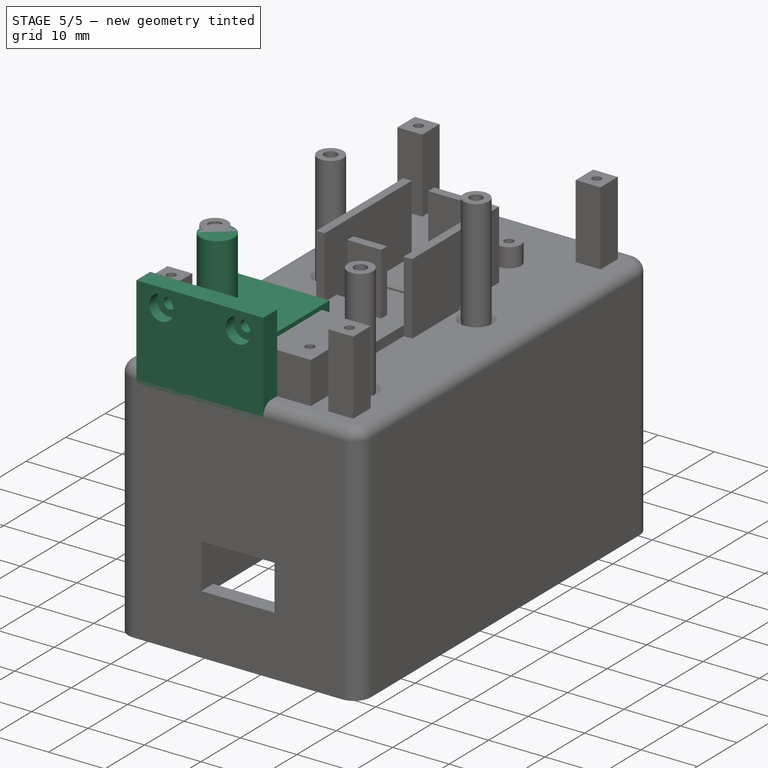
[diagram: stage 5 of 5 — iso view after this stage's code; geometry added in this stage tinted green]
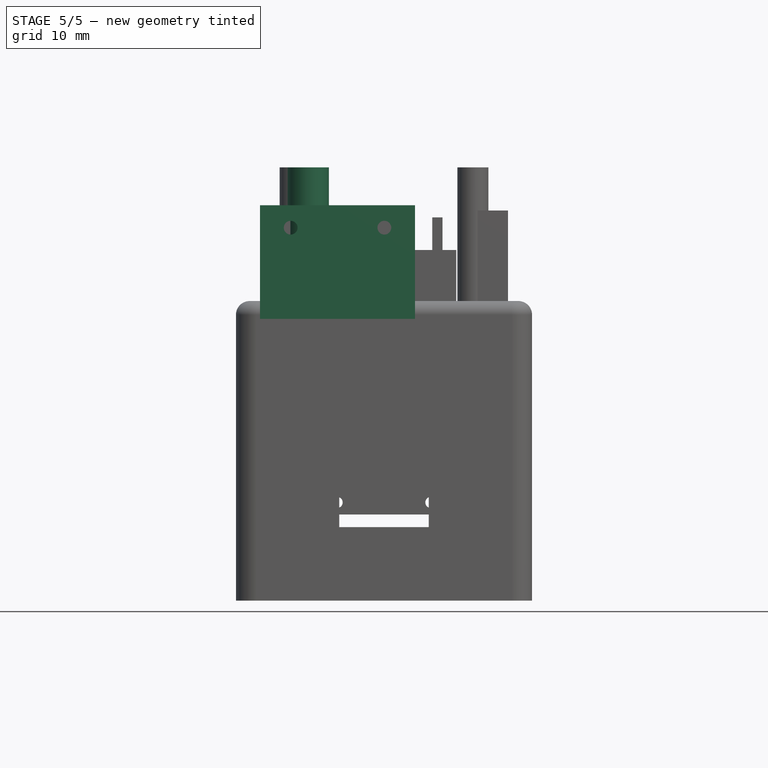
[diagram: stage 5 of 5 — front view after this stage's code; geometry added in this stage tinted green]
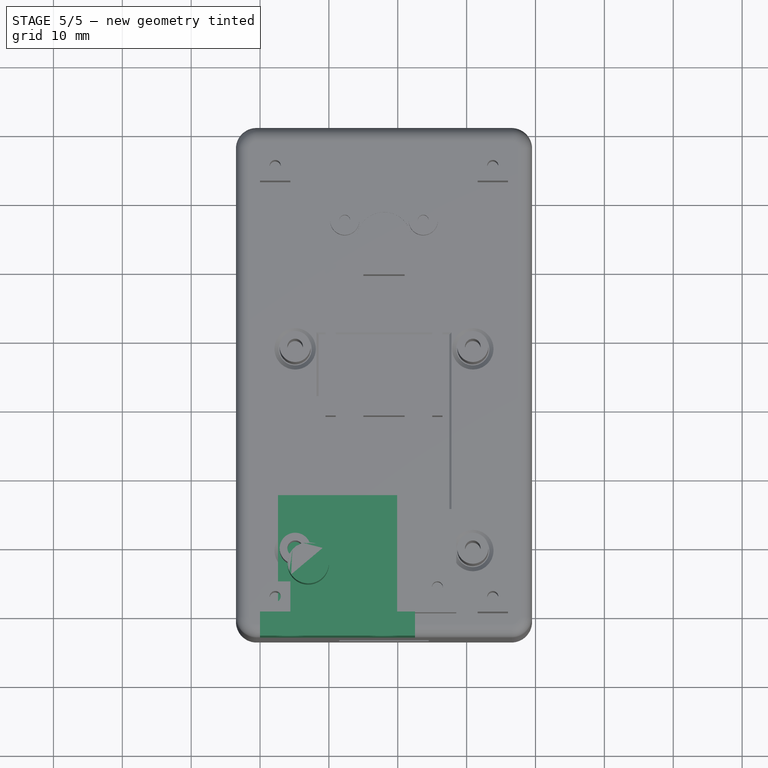
[diagram: stage 5 of 5 — top view after this stage's code; geometry added in this stage tinted green]
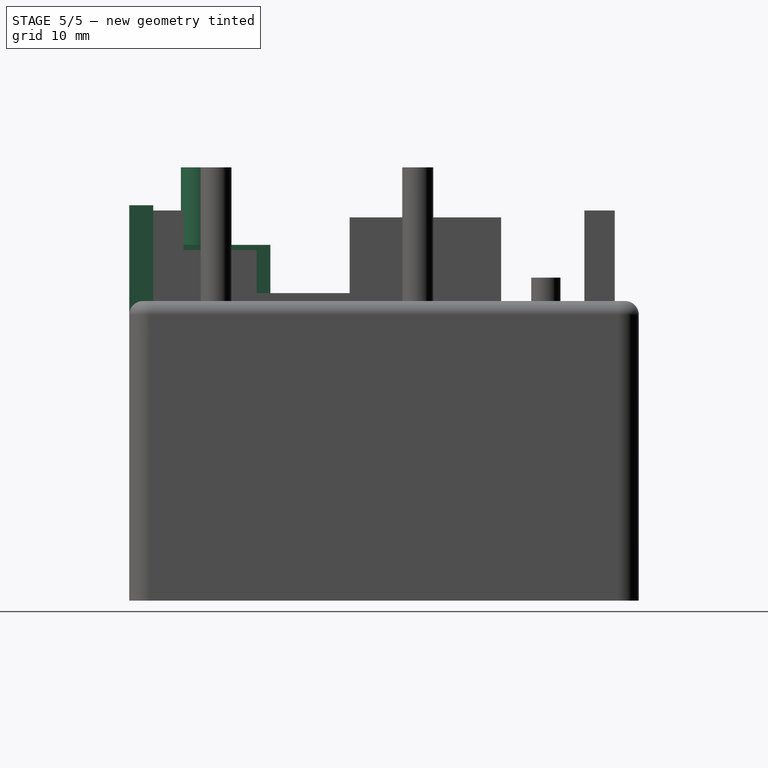
[diagram: stage 5 of 5 — right view after this stage's code; geometry added in this stage tinted green]
FEATURE [Sketcher::SketchObject] Sketch025
  FullyConstrained = true
  MapMode = 5
  Placement = pos=(0,0,0) rot=(1,0,0;1.5708rad)
  Support = -> [XZ_Plane003]
  sketch-geometry (4):
    g0: LineSegment StartX=0 StartY=0 StartZ=0 EndX=22.5 EndY=0 EndZ=0
    g1: LineSegment StartX=22.5 StartY=0 StartZ=0 EndX=22.5 EndY=16.5 EndZ=0
    g2: LineSegment StartX=22.5 StartY=16.5 StartZ=0 EndX=0 EndY=16.5 EndZ=0
    g3: LineSegment StartX=0 StartY=16.5 StartZ=0 EndX=0 EndY=0 EndZ=0
  constraints (11):
    c: Coincident(g0,g1)
    c: Coincident(g1,g2)
    c: Coincident(g2,g3)
    c: Coincident(g3,g0)
    c: Horizontal(g0)
    c: Horizontal(g2)
    c: Vertical(g1)
    c: Vertical(g3)
    c: Coincident(g0,g-1)
    c: DistanceX(g2,g2) = 22.5
    c: DistanceY(g1,g1) = 16.5
FEATURE [PartDesign::Pad] Pad012
  Direction = (0,-1,2e-16)
  Length = 3.5
  Length2 = 10
  Placement = pos=(0,0,0) rot=(1,0,0;1.5708rad)
  Profile = -> Sketch025
  ReferenceAxis = -> Sketch025 [N_Axis]
  Type = 0
FEATURE [Sketcher::SketchObject] Sketch026
  ExternalGeometry = -> [Pad012]
  FullyConstrained = true
  MapMode = 5
  Placement = pos=(0,-3.5,8e-16) rot=(1,0,0;1.5708rad)
  Support = -> [Pad012]
  expr: Constraints[13] = <<params>>.screw_terminal_hole_spacing
  sketch-geometry (5):
    g0: Circle CenterX=4.45 CenterY=13.25 CenterZ=0 NormalX=0 NormalY=0 NormalZ=1 AngleXU=0 Radius=2.2
    g1: Circle CenterX=18.05 CenterY=13.25 CenterZ=0 NormalX=0 NormalY=0 NormalZ=1 AngleXU=0 Radius=2.2
    g2: LineSegment StartX=0 StartY=13.25 StartZ=0 EndX=4.45 EndY=13.25 EndZ=0
    g3: LineSegment StartX=4.45 StartY=13.25 StartZ=0 EndX=18.05 EndY=13.25 EndZ=0
    g4: LineSegment StartX=18.05 StartY=13.25 StartZ=0 EndX=22.5 EndY=13.25 EndZ=0
  constraints (14):
    c: Equal(g1,g0)
    c: Diameter(g0) = 4.4
    c: PointOnObject(g2,g-2)
    c: Coincident(g2,g0)
    c: Coincident(g2,g3)
    c: Coincident(g3,g1)
    c: Horizontal(g3)
    c: Coincident(g3,g4)
    c: Horizontal(g2)
    c: Horizontal(g4)
    c: PointOnObject(g4,g-3)
    c: Equal(g4,g2)
    c: DistanceY(g2) = 13.25
    c: DistanceX(g3,g3) = 13.6
FEATURE [PartDesign::Pocket] Pocket009
  BaseFeature = -> Pad012
  Direction = (0,1,-2e-16)
  Length = 2
  Length2 = 5
  Placement = pos=(0,0,0) rot=(1,0,0;1.5708rad)
  Profile = -> Sketch026
  ReferenceAxis = -> Sketch026 [N_Axis]
  Type = 0
FEATURE [Sketcher::SketchObject] Sketch027
  ExternalGeometry = -> [Pocket009]
  FullyConstrained = true
  MapMode = 5
  Placement = pos=(0,-3.5,1.2e-15) rot=(1,0,0;1.5708rad)
  Support = -> [Pocket009]
  sketch-geometry (2):
    g0: Circle CenterX=4.45 CenterY=13.25 CenterZ=0 NormalX=0 NormalY=0 NormalZ=1 AngleXU=0 Radius=1
    g1: Circle CenterX=18.05 CenterY=13.25 CenterZ=0 NormalX=0 NormalY=0 NormalZ=1 AngleXU=0 Radius=1
  constraints (4):
    c: Coincident(g0,g-3)
    c: Coincident(g1,g-4)
    c: Equal(g1,g0)
    c: Diameter(g0) = 2
FEATURE [PartDesign::Pocket] Pocket010
  BaseFeature = -> Pocket009
  Direction = (0,1,-2e-16)
  Length = 5
  Length2 = 5
  Placement = pos=(0,0,0) rot=(1,0,0;1.5708rad)
  Profile = -> Sketch027
  ReferenceAxis = -> Sketch027 [N_Axis]
  Type = 1
FEATURE [Sketcher::SketchObject] Sketch028
  ExternalGeometry = -> [Pocket010]
  FullyConstrained = true
  MapMode = 5
  Placement = pos=(0,0,0) rot=(-1,0,0;1.5708rad)
  Support = -> [Pocket010]
  sketch-geometry (6):
    g0: LineSegment StartX=19.9 StartY=-10.75 StartZ=0 EndX=2.6 EndY=-10.75 EndZ=0
    g1: LineSegment StartX=2.6 StartY=-10.75 StartZ=0 EndX=2.6 EndY=-2.85 EndZ=0
    g2: LineSegment StartX=2.6 StartY=-2.85 StartZ=0 EndX=19.9 EndY=-2.85 EndZ=0
    g3: LineSegment StartX=19.9 StartY=-2.85 StartZ=0 EndX=19.9 EndY=-10.75 EndZ=0
    g4: LineSegment StartX=19.9 StartY=-10.75 StartZ=0 EndX=22.5 EndY=-10.75 EndZ=0
    g5: LineSegment StartX=2.6 StartY=-10.75 StartZ=0 EndX=0 EndY=-10.75 EndZ=0
  constraints (18):
    c: Coincident(g0,g1)
    c: Coincident(g1,g2)
    c: Coincident(g2,g3)
    c: Coincident(g3,g0)
    c: Horizontal(g0)
    c: Horizontal(g2)
    c: Vertical(g1)
    c: Vertical(g3)
    c: DistanceX(g2,g2) = 17.3
    c: DistanceY(g3,g3) = 7.9
    c: DistanceY(g-1,g2) = -2.85
    c: Coincident(g4,g0)
    c: PointOnObject(g4,g-3)
    c: Horizontal(g4)
    c: Coincident(g5,g0)
    c: PointOnObject(g5,g-2)
    c: Equal(g5,g4)
    c: Horizontal(g5)
FEATURE [PartDesign::Pad] Pad013
  BaseFeature = -> Pocket010
  Direction = (0,1,-4e-16)
  Length = 17
  Length2 = 10
  Placement = pos=(0,0,0) rot=(1,0,0;1.5708rad)
  Profile = -> Sketch028
  ReferenceAxis = -> Sketch028 [N_Axis]
  Type = 0
FEATURE [PartDesign::Body] Body003  label="screw terminal"
  Group = -> [Sketch025,Pad012,Sketch026,Pocket009,Sketch027,Pocket010,Sketch028,Pad013]
  Origin = -> Origin003
  Placement = pos=(29.2,70.5,-0.5) rot=(0,0,1;3.14159rad)
  Tip = -> Pad013
  expr: .Placement.Base.y = <<params>>.base_plate_length + <<params>>.interior_plate_case_clearance + <<params>>.case_wall_thickness
FEATURE [Sketcher::SketchObject] Sketch029
  FullyConstrained = true
  MapMode = 5
  Support = -> [XY_Plane004]
  expr: Constraints[8] = <<params>>.knob_short_side
  expr: Constraints[9] = <<params>>.knob_long_side
  sketch-geometry (4):
    g0: LineSegment StartX=14 StartY=0 StartZ=0 EndX=0 EndY=0 EndZ=0
    g1: LineSegment StartX=0 StartY=0 StartZ=0 EndX=0 EndY=14 EndZ=0
    g2: LineSegment StartX=0 StartY=14 StartZ=0 EndX=14 EndY=14 EndZ=0
    g3: LineSegment StartX=14 StartY=14 StartZ=0 EndX=14 EndY=0 EndZ=0
  constraints (11):
    c: Coincident(g0,g1)
    c: Coincident(g1,g2)
    c: Coincident(g2,g3)
    c: Coincident(g3,g0)
    c: Horizontal(g0)
    c: Horizontal(g2)
    c: Vertical(g1)
    c: Vertical(g3)
    c: DistanceY(g1,g1) = 14
    c: DistanceX(g2,g2) = 14
    c: Coincident(g0,g-1)
FEATURE [PartDesign::Pad] Pad014  label="body"
  Direction = (0,0,1)
  Length = 10
  Length2 = 10
  Profile = -> Sketch029
  ReferenceAxis = -> Sketch029 [N_Axis]
  Reversed = true
  Type = 0
FEATURE [Sketcher::SketchObject] Sketch030
  ExternalGeometry = -> [Sketch029]
  FullyConstrained = true
  MapMode = 5
  Support = -> [XY_Plane004]
  sketch-geometry (3):
    g0: Circle CenterX=7 CenterY=7 CenterZ=0 NormalX=0 NormalY=0 NormalZ=1 AngleXU=0 Radius=3.5
    g1: LineSegment StartX=0 StartY=14 StartZ=0 EndX=14 EndY=-1.8e-15 EndZ=0
    g2: LineSegment StartX=14 StartY=14 StartZ=0 EndX=-1.8e-15 EndY=-1.8e-15 EndZ=0
  constraints (7):
    c: Coincident(g1,g-3)
    c: Coincident(g1,g-4)
    c: Coincident(g2,g-3)
    c: Coincident(g2,g-4)
    c: PointOnObject(g0,g1)
    c: PointOnObject(g0,g2)
    c: Diameter(g0) = 7
FEATURE [PartDesign::Pad] Pad015  label="thread"
  BaseFeature = -> Pad014
  Direction = (0,0,1)
  Length = 7
  Length2 = 10
  Profile = -> Sketch030
  ReferenceAxis = -> Sketch030 [N_Axis]
  Type = 0
FEATURE [Sketcher::SketchObject] Sketch031
  ExternalGeometry = -> [Pad015]
  FullyConstrained = true
  MapMode = 5
  Placement = pos=(0,0,7) rot=(0,0,1;0rad)
  Support = -> [Pad015]
  sketch-geometry (1):
    g0: Circle CenterX=7 CenterY=7 CenterZ=0 NormalX=0 NormalY=0 NormalZ=1 AngleXU=0 Radius=3
  constraints (2):
    c: Coincident(g0,g-3)
    c: Diameter(g0) = 6
FEATURE [PartDesign::Pad] Pad016  label="shaft"
  BaseFeature = -> Pad015
  Direction = (0,0,1)
  Length = 15
  Length2 = 10
  Profile = -> Sketch031
  ReferenceAxis = -> Sketch031 [N_Axis]
  Type = 0
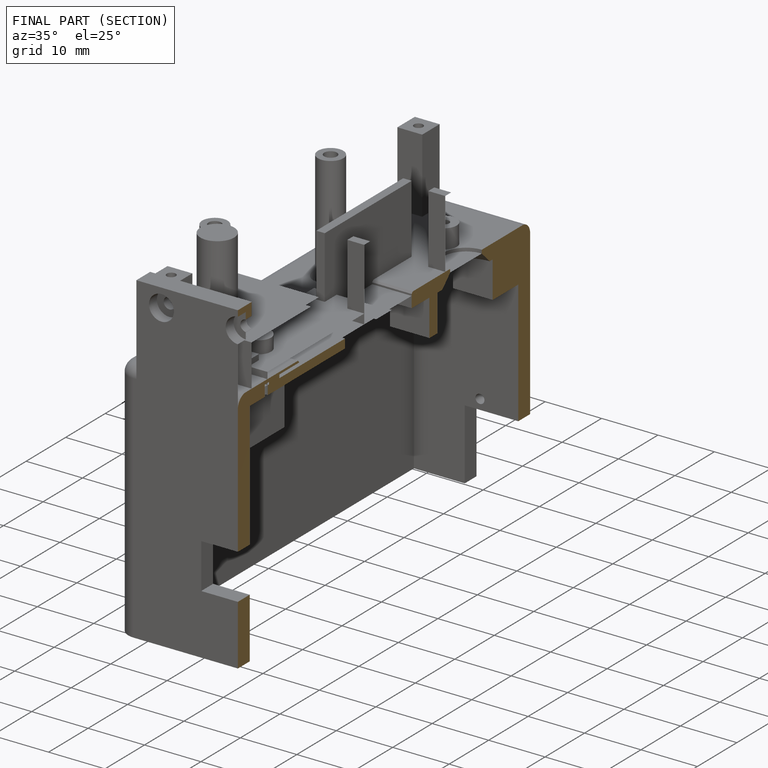
[diagram: finished part — half-section view (interior)]
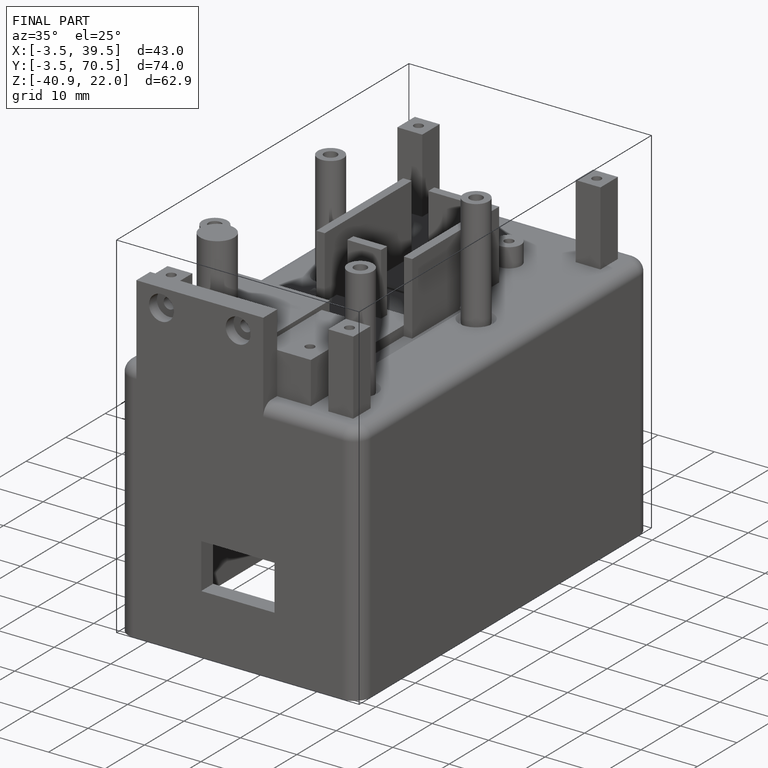
[diagram: finished part — iso view with bounding-box wireframe]
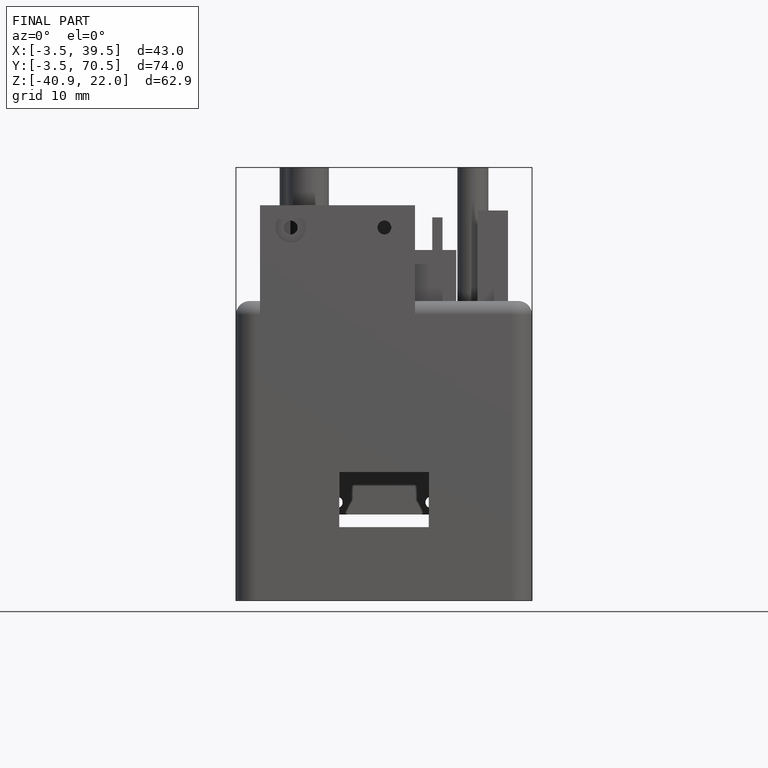
[diagram: finished part — front view with bounding-box wireframe]
